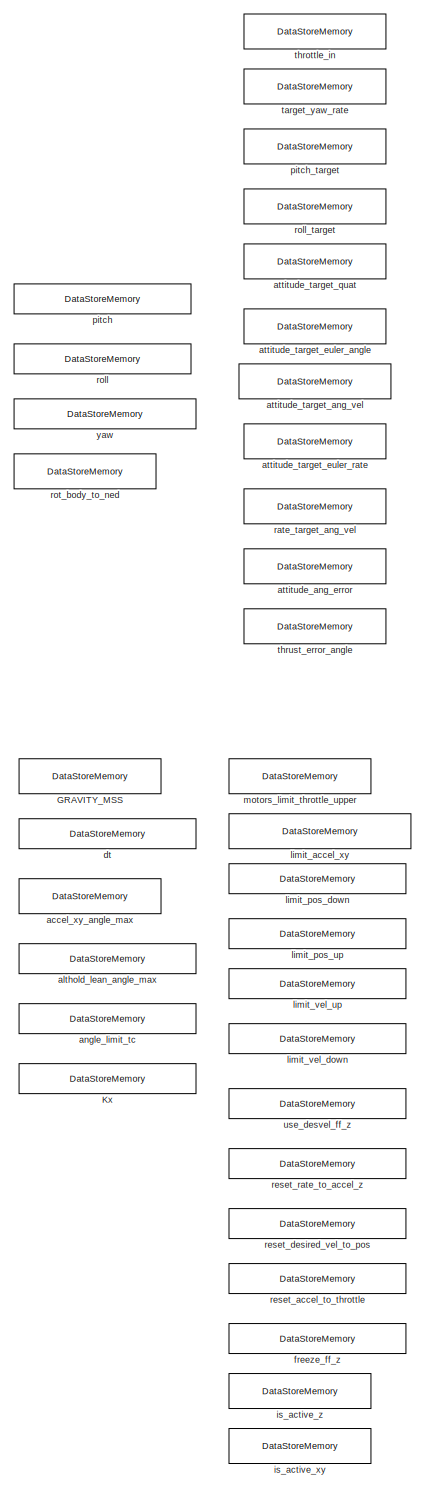
[diagram: root canvas - part 1/13, top center region]
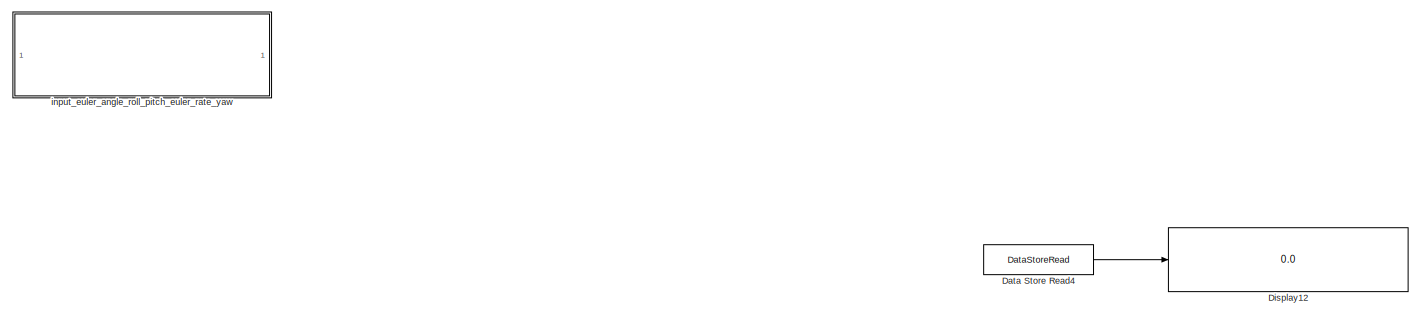
[diagram: root canvas - part 2/13, top left region]
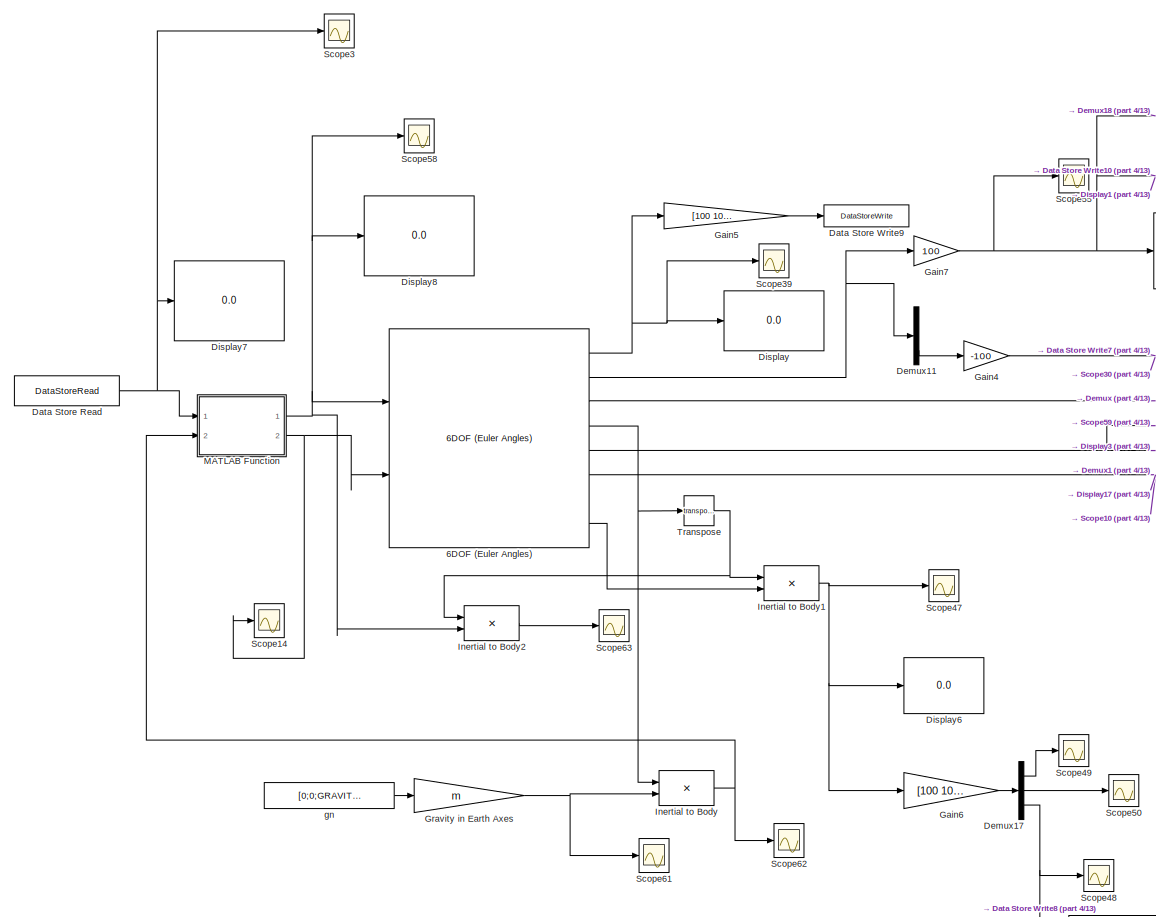
[diagram: root canvas - part 3/13, middle left region]
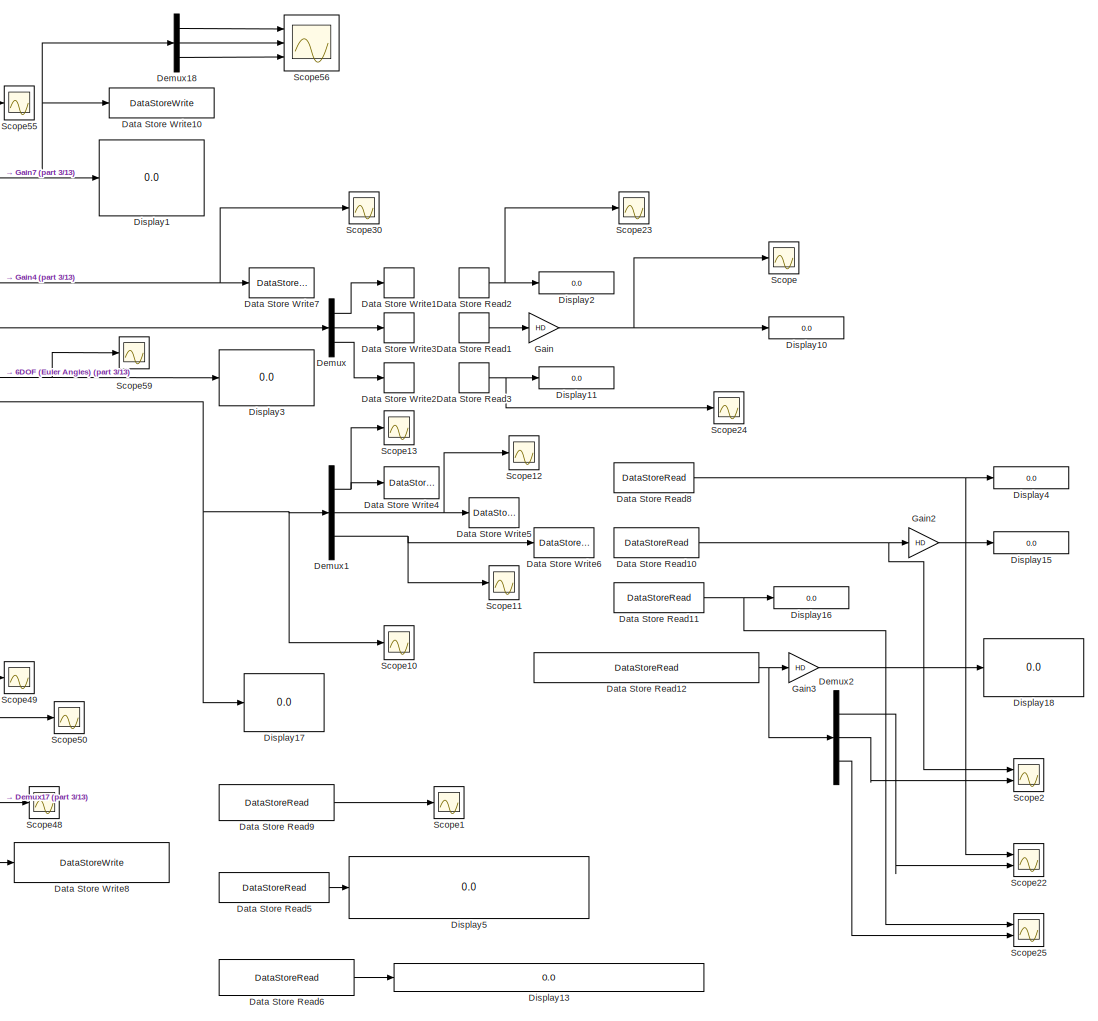
[diagram: root canvas - part 4/13, middle left region]
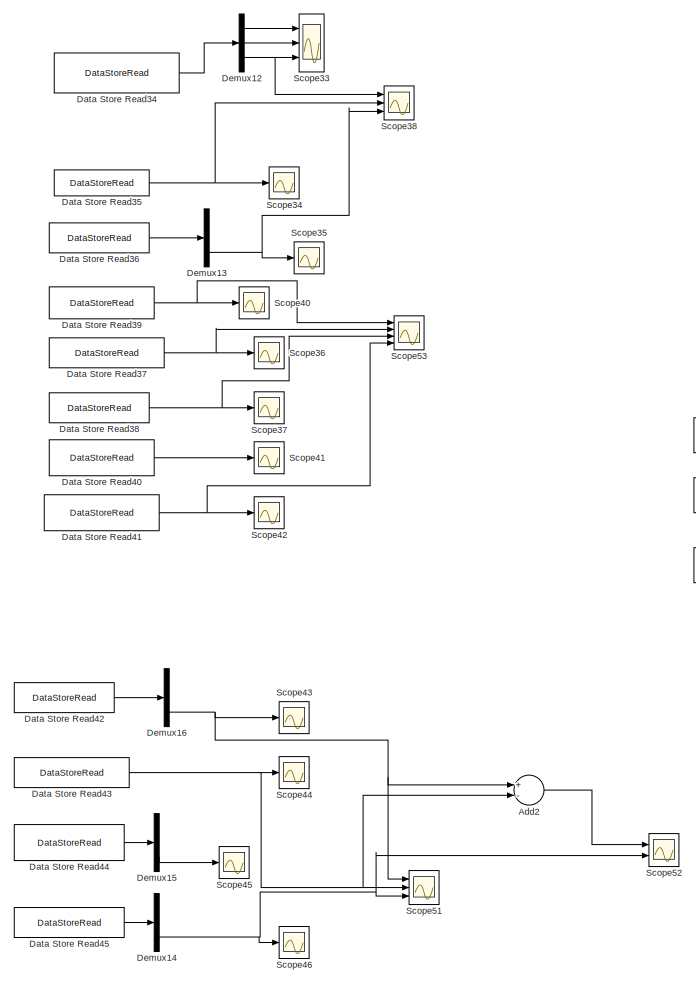
[diagram: root canvas - part 5/13, central region]
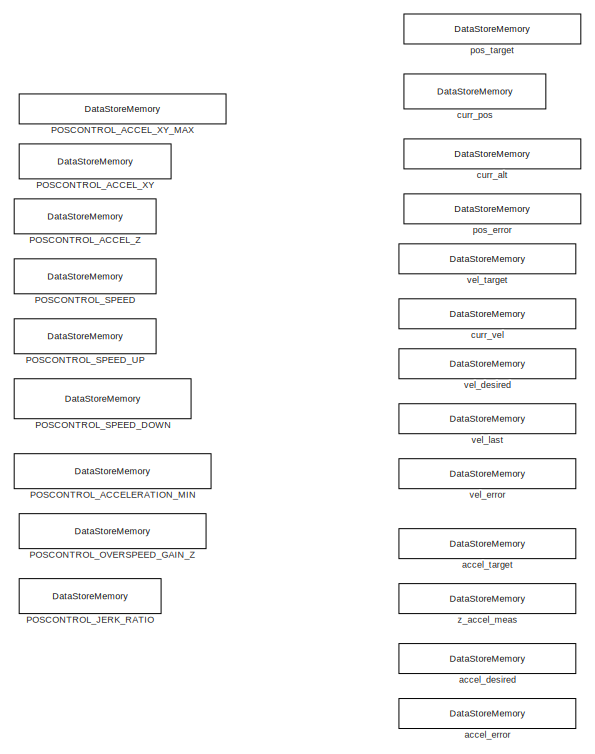
[diagram: root canvas - part 6/13, central region]
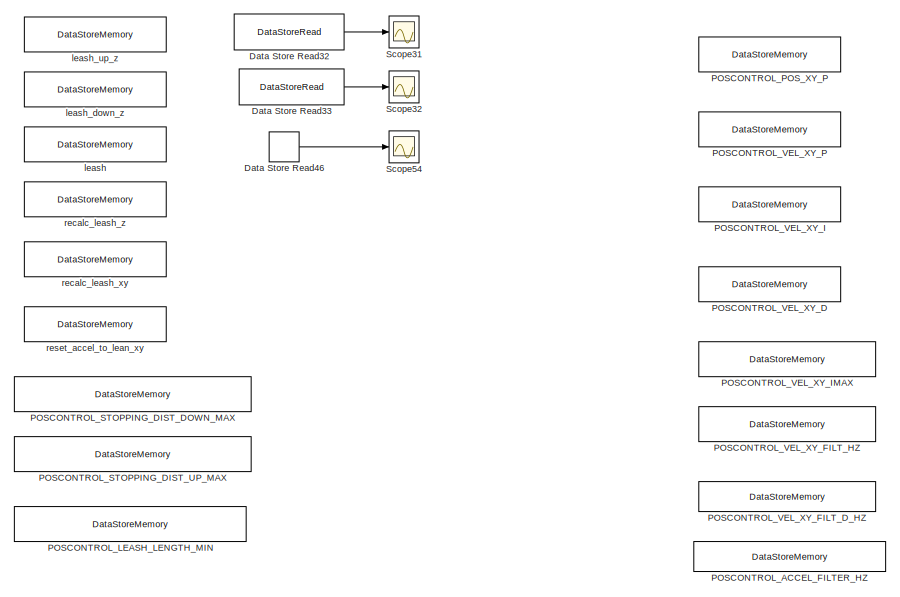
[diagram: root canvas - part 7/13, central region]
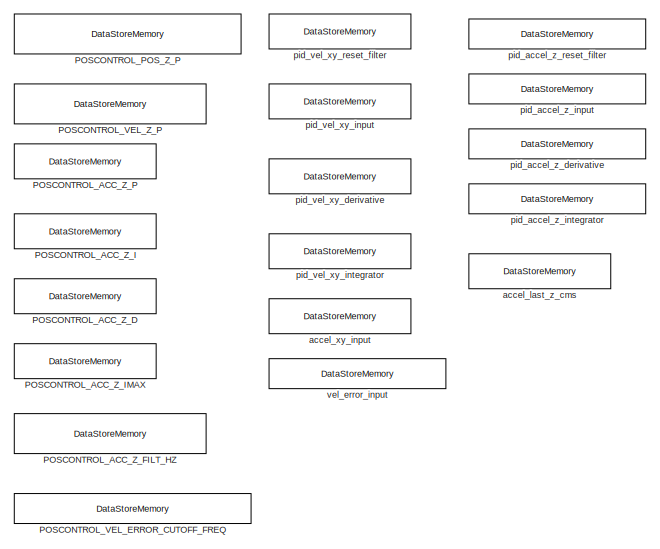
[diagram: root canvas - part 8/13, middle right region]
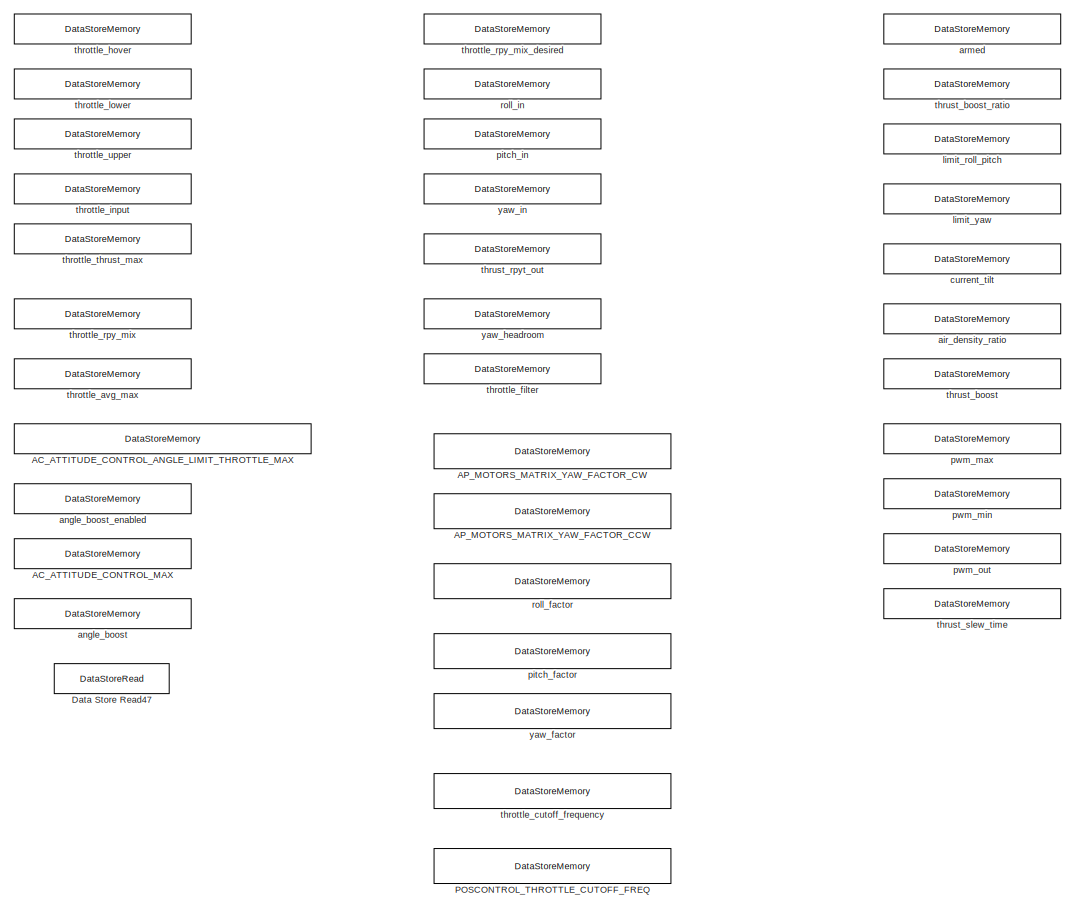
[diagram: root canvas - part 9/13, middle right region]
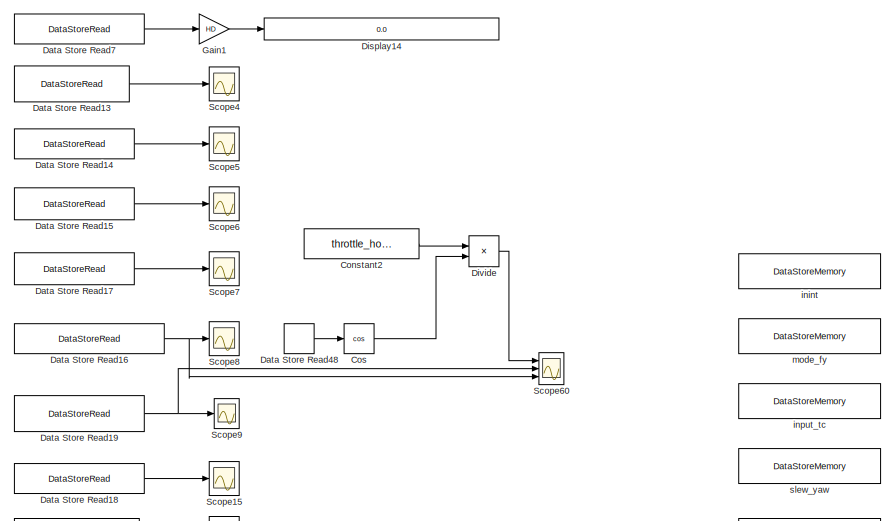
[diagram: root canvas - part 10/13, middle left region]
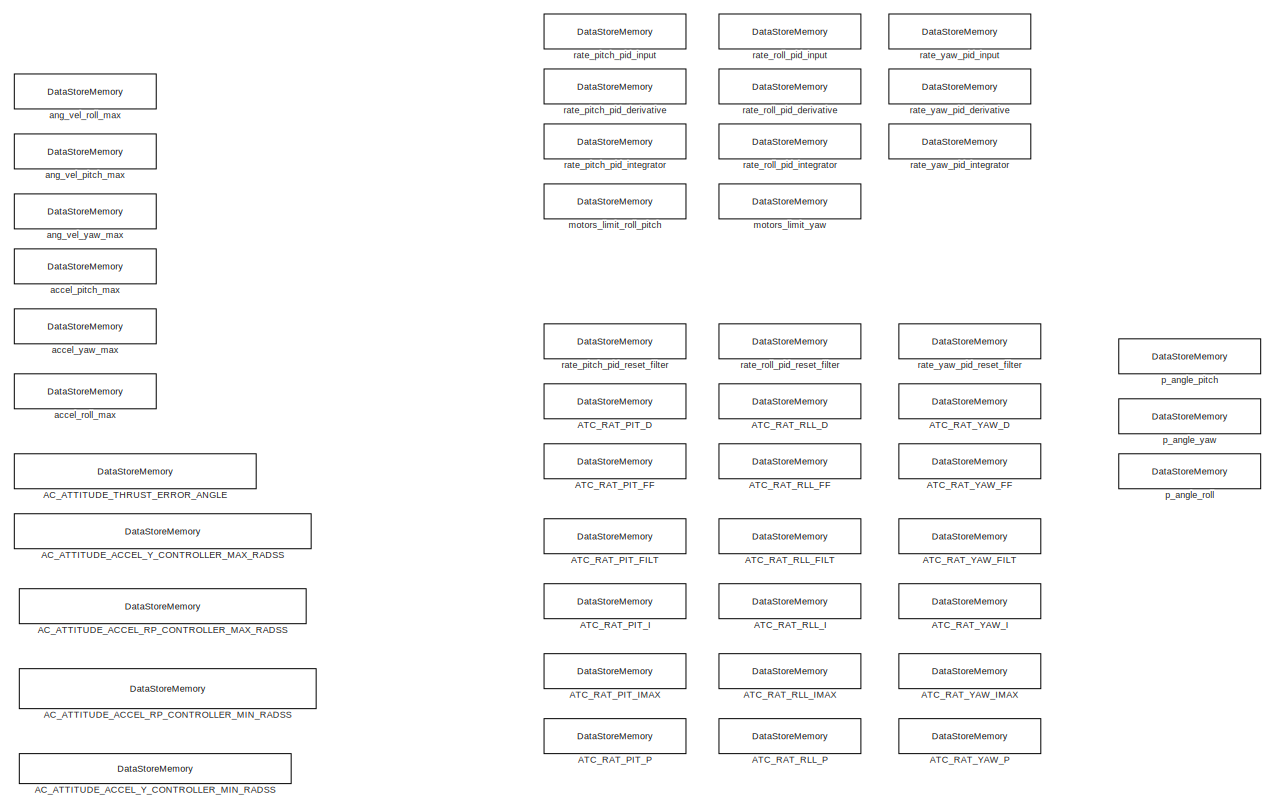
[diagram: root canvas - part 11/13, bottom center region]
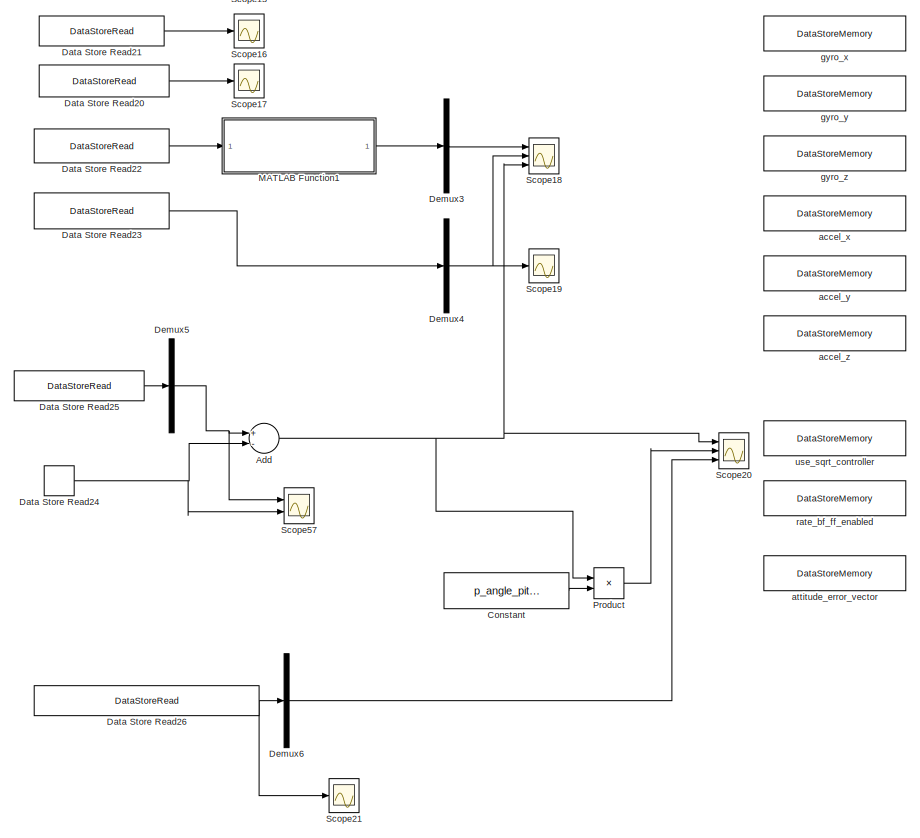
[diagram: root canvas - part 12/13, bottom left region]
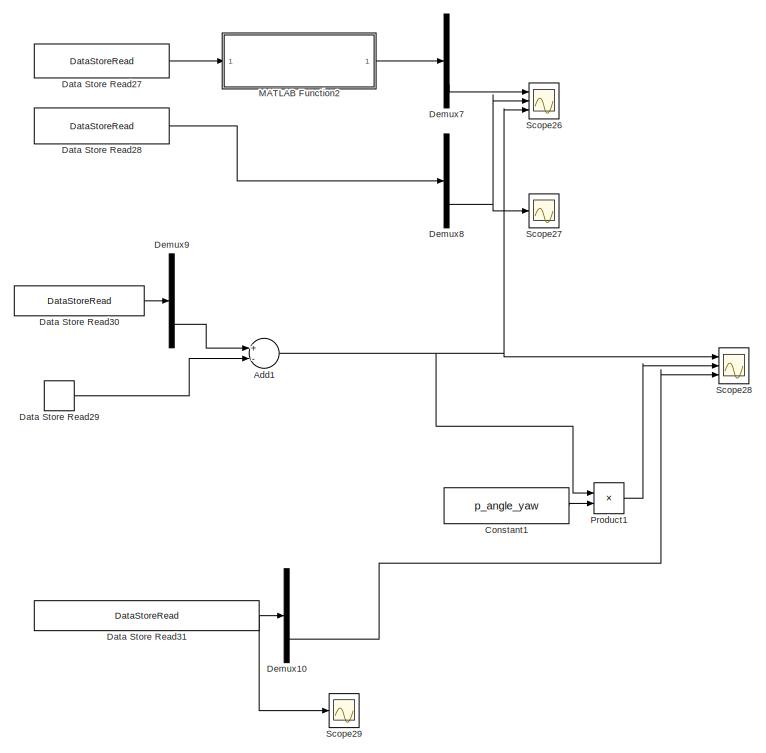
[diagram: root canvas - part 13/13, bottom left region]
MODEL slx_5e8bce1d998e
KIND model
CONFIG AbsTol = auto
CONFIG EnableMultiTasking = off
CONFIG FixedStep = dt
CONFIG MaxStep = auto
CONFIG MinStep = auto
CONFIG RelTol = 1e-3
CONFIG SampleTimeConstraint = Unconstrained
CONFIG Solver = ode1
CONFIG SolverName = ode1
CONFIG StartTime = 0.0
CONFIG StopTime = 20
BLOCK [Reference] 6DOF (Euler Angles)  REF=shared6dof/6DOF (Euler Angles)
  Ports = [2, 8]
  SourceBlock = shared6dof/6DOF (Euler Angles)
  SourceProductBaseCode = AE
  SourceProductName = Aerospace Blockset
  SourceType = 6DOF EoM (Body Axis)
BLOCK [DataStoreMemory] AC_ATTITUDE_ACCEL_RP_CONTROLLER_MAX_RADSS
  DataStoreName = AC_ATTITUDE_ACCEL_RP_CONTROLLER_MAX_RADSS
  InitialValue = AC_ATTITUDE_ACCEL_RP_CONTROLLER_MAX_RADSS
  OutDataTypeStr = double
  ReadBeforeWriteMsg = warning
  ShowAdditionalParam = off
  SignalType = real
  VectorParams1D = off
  WriteAfterReadMsg = warning
  WriteAfterWriteMsg = warning
BLOCK [DataStoreMemory] AC_ATTITUDE_ACCEL_RP_CONTROLLER_MIN_RADSS
  DataStoreName = AC_ATTITUDE_ACCEL_RP_CONTROLLER_MIN_RADSS
  InitialValue = AC_ATTITUDE_ACCEL_RP_CONTROLLER_MIN_RADSS
  OutDataTypeStr = double
  ReadBeforeWriteMsg = warning
  ShowAdditionalParam = off
  SignalType = real
  VectorParams1D = off
  WriteAfterReadMsg = warning
  WriteAfterWriteMsg = warning
BLOCK [DataStoreMemory] AC_ATTITUDE_ACCEL_Y_CONTROLLER_MAX_RADSS
  DataStoreName = AC_ATTITUDE_ACCEL_Y_CONTROLLER_MAX_RADSS
  InitialValue = AC_ATTITUDE_ACCEL_Y_CONTROLLER_MAX_RADSS
  OutDataTypeStr = double
  ReadBeforeWriteMsg = warning
  ShowAdditionalParam = off
  SignalType = real
  WriteAfterReadMsg = warning
  WriteAfterWriteMsg = warning
BLOCK [DataStoreMemory] AC_ATTITUDE_ACCEL_Y_CONTROLLER_MIN_RADSS
  DataStoreName = AC_ATTITUDE_ACCEL_Y_CONTROLLER_MIN_RADSS
  InitialValue = AC_ATTITUDE_ACCEL_Y_CONTROLLER_MIN_RADSS
  OutDataTypeStr = double
  ReadBeforeWriteMsg = warning
  ShowAdditionalParam = off
  SignalType = real
  VectorParams1D = off
  WriteAfterReadMsg = warning
  WriteAfterWriteMsg = warning
BLOCK [DataStoreMemory] AC_ATTITUDE_CONTROL_ANGLE_LIMIT_THROTTLE_MAX
  DataStoreName = AC_ATTITUDE_CONTROL_ANGLE_LIMIT_THROTTLE_MAX
  InitialValue = AC_ATTITUDE_CONTROL_ANGLE_LIMIT_THROTTLE_MAX
  OutDataTypeStr = double
  ReadBeforeWriteMsg = warning
  ShowAdditionalParam = off
  SignalType = real
  VectorParams1D = off
  WriteAfterReadMsg = warning
  WriteAfterWriteMsg = warning
BLOCK [DataStoreMemory] AC_ATTITUDE_CONTROL_MAX
  DataStoreName = AC_ATTITUDE_CONTROL_MAX
  InitialValue = AC_ATTITUDE_CONTROL_MAX
  OutDataTypeStr = double
  ReadBeforeWriteMsg = warning
  ShowAdditionalParam = off
  SignalType = real
  VectorParams1D = off
  WriteAfterReadMsg = warning
  WriteAfterWriteMsg = warning
BLOCK [DataStoreMemory] AC_ATTITUDE_THRUST_ERROR_ANGLE
  DataStoreName = AC_ATTITUDE_THRUST_ERROR_ANGLE
  InitialValue = AC_ATTITUDE_THRUST_ERROR_ANGLE
  OutDataTypeStr = double
  ReadBeforeWriteMsg = warning
  ShowAdditionalParam = off
  SignalType = real
  WriteAfterReadMsg = warning
  WriteAfterWriteMsg = warning
BLOCK [DataStoreMemory] AP_MOTORS_MATRIX_YAW_FACTOR_CCW
  DataStoreName = AP_MOTORS_MATRIX_YAW_FACTOR_CCW
  InitialValue = AP_MOTORS_MATRIX_YAW_FACTOR_CCW
  OutDataTypeStr = double
  ReadBeforeWriteMsg = warning
  ShowAdditionalParam = off
  SignalType = real
  VectorParams1D = off
  WriteAfterReadMsg = warning
  WriteAfterWriteMsg = warning
BLOCK [DataStoreMemory] AP_MOTORS_MATRIX_YAW_FACTOR_CW
  DataStoreName = AP_MOTORS_MATRIX_YAW_FACTOR_CW
  InitialValue = AP_MOTORS_MATRIX_YAW_FACTOR_CW
  OutDataTypeStr = double
  ReadBeforeWriteMsg = warning
  ShowAdditionalParam = off
  SignalType = real
  VectorParams1D = off
  WriteAfterReadMsg = warning
  WriteAfterWriteMsg = warning
BLOCK [DataStoreMemory] ATC_RAT_PIT_D
  DataStoreName = ATC_RAT_PIT_D
  InitialValue = ATC_RAT_PIT_D
  OutDataTypeStr = double
  ReadBeforeWriteMsg = warning
  ShowAdditionalParam = off
  SignalType = real
  VectorParams1D = off
  WriteAfterReadMsg = warning
  WriteAfterWriteMsg = warning
BLOCK [DataStoreMemory] ATC_RAT_PIT_FF
  DataStoreName = ATC_RAT_PIT_FF
  InitialValue = ATC_RAT_PIT_FF
  OutDataTypeStr = double
  ReadBeforeWriteMsg = warning
  ShowAdditionalParam = off
  SignalType = real
  VectorParams1D = off
  WriteAfterReadMsg = warning
  WriteAfterWriteMsg = warning
BLOCK [DataStoreMemory] ATC_RAT_PIT_FILT
  DataStoreName = ATC_RAT_PIT_FILT
  InitialValue = ATC_RAT_PIT_FILT
  OutDataTypeStr = double
  ReadBeforeWriteMsg = warning
  ShowAdditionalParam = off
  SignalType = real
  VectorParams1D = off
  WriteAfterReadMsg = warning
  WriteAfterWriteMsg = warning
BLOCK [DataStoreMemory] ATC_RAT_PIT_I
  DataStoreName = ATC_RAT_PIT_I
  InitialValue = ATC_RAT_PIT_I
  OutDataTypeStr = double
  ReadBeforeWriteMsg = warning
  ShowAdditionalParam = off
  SignalType = real
  VectorParams1D = off
  WriteAfterReadMsg = warning
  WriteAfterWriteMsg = warning
BLOCK [DataStoreMemory] ATC_RAT_PIT_IMAX
  DataStoreName = ATC_RAT_PIT_IMAX
  InitialValue = ATC_RAT_PIT_IMAX
  OutDataTypeStr = double
  ReadBeforeWriteMsg = warning
  ShowAdditionalParam = off
  SignalType = real
  VectorParams1D = off
  WriteAfterReadMsg = warning
  WriteAfterWriteMsg = warning
BLOCK [DataStoreMemory] ATC_RAT_PIT_P
  DataStoreName = ATC_RAT_PIT_P
  InitialValue = ATC_RAT_PIT_P
  OutDataTypeStr = double
  ReadBeforeWriteMsg = warning
  ShowAdditionalParam = off
  SignalType = real
  VectorParams1D = off
  WriteAfterReadMsg = warning
  WriteAfterWriteMsg = warning
BLOCK [DataStoreMemory] ATC_RAT_RLL_D
  DataStoreName = ATC_RAT_RLL_D
  InitialValue = ATC_RAT_RLL_D
  OutDataTypeStr = double
  ReadBeforeWriteMsg = warning
  ShowAdditionalParam = off
  SignalType = real
  VectorParams1D = off
  WriteAfterReadMsg = warning
  WriteAfterWriteMsg = warning
BLOCK [DataStoreMemory] ATC_RAT_RLL_FF
  DataStoreName = ATC_RAT_RLL_FF
  InitialValue = ATC_RAT_RLL_FF
  OutDataTypeStr = double
  ReadBeforeWriteMsg = warning
  ShowAdditionalParam = off
  SignalType = real
  VectorParams1D = off
  WriteAfterReadMsg = warning
  WriteAfterWriteMsg = warning
BLOCK [DataStoreMemory] ATC_RAT_RLL_FILT
  DataStoreName = ATC_RAT_RLL_FILT
  InitialValue = ATC_RAT_RLL_FILT
  OutDataTypeStr = double
  ReadBeforeWriteMsg = warning
  ShowAdditionalParam = off
  SignalType = real
  VectorParams1D = off
  WriteAfterReadMsg = warning
  WriteAfterWriteMsg = warning
BLOCK [DataStoreMemory] ATC_RAT_RLL_I
  DataStoreName = ATC_RAT_RLL_I
  InitialValue = ATC_RAT_RLL_I
  OutDataTypeStr = double
  ReadBeforeWriteMsg = warning
  ShowAdditionalParam = off
  SignalType = real
  VectorParams1D = off
  WriteAfterReadMsg = warning
  WriteAfterWriteMsg = warning
BLOCK [DataStoreMemory] ATC_RAT_RLL_IMAX
  DataStoreName = ATC_RAT_RLL_IMAX
  InitialValue = ATC_RAT_RLL_IMAX
  OutDataTypeStr = double
  ReadBeforeWriteMsg = warning
  ShowAdditionalParam = off
  SignalType = real
  VectorParams1D = off
  WriteAfterReadMsg = warning
  WriteAfterWriteMsg = warning
BLOCK [DataStoreMemory] ATC_RAT_RLL_P
  DataStoreName = ATC_RAT_RLL_P
  InitialValue = ATC_RAT_RLL_P
  OutDataTypeStr = double
  ReadBeforeWriteMsg = warning
  ShowAdditionalParam = off
  SignalType = real
  VectorParams1D = off
  WriteAfterReadMsg = warning
  WriteAfterWriteMsg = warning
BLOCK [DataStoreMemory] ATC_RAT_YAW_D
  DataStoreName = ATC_RAT_YAW_D
  InitialValue = ATC_RAT_YAW_D
  OutDataTypeStr = double
  ReadBeforeWriteMsg = warning
  ShowAdditionalParam = off
  SignalType = real
  VectorParams1D = off
  WriteAfterReadMsg = warning
  WriteAfterWriteMsg = warning
BLOCK [DataStoreMemory] ATC_RAT_YAW_FF
  DataStoreName = ATC_RAT_YAW_FF
  InitialValue = ATC_RAT_YAW_FF
  OutDataTypeStr = double
  ReadBeforeWriteMsg = warning
  ShowAdditionalParam = off
  SignalType = real
  VectorParams1D = off
  WriteAfterReadMsg = warning
  WriteAfterWriteMsg = warning
BLOCK [DataStoreMemory] ATC_RAT_YAW_FILT
  DataStoreName = ATC_RAT_YAW_FILT
  InitialValue = ATC_RAT_YAW_FILT
  OutDataTypeStr = double
  ReadBeforeWriteMsg = warning
  ShowAdditionalParam = off
  SignalType = real
  VectorParams1D = off
  WriteAfterReadMsg = warning
  WriteAfterWriteMsg = warning
BLOCK [DataStoreMemory] ATC_RAT_YAW_I
  DataStoreName = ATC_RAT_YAW_I
  InitialValue = ATC_RAT_YAW_I
  OutDataTypeStr = double
  ReadBeforeWriteMsg = warning
  ShowAdditionalParam = off
  SignalType = real
  VectorParams1D = off
  WriteAfterReadMsg = warning
  WriteAfterWriteMsg = warning
BLOCK [DataStoreMemory] ATC_RAT_YAW_IMAX
  DataStoreName = ATC_RAT_YAW_IMAX
  InitialValue = ATC_RAT_YAW_IMAX
  OutDataTypeStr = double
  ReadBeforeWriteMsg = warning
  ShowAdditionalParam = off
  SignalType = real
  VectorParams1D = off
  WriteAfterReadMsg = warning
  WriteAfterWriteMsg = warning
BLOCK [DataStoreMemory] ATC_RAT_YAW_P
  DataStoreName = ATC_RAT_YAW_P
  InitialValue = ATC_RAT_YAW_P
  OutDataTypeStr = double
  ReadBeforeWriteMsg = warning
  ShowAdditionalParam = off
  SignalType = real
  VectorParams1D = off
  WriteAfterReadMsg = warning
  WriteAfterWriteMsg = warning
BLOCK [Sum] Add
  InputSameDT = off
  Inputs = +-
  OutDataTypeStr = Inherit: Inherit via internal rule
  Ports = [2, 1]
  SaturateOnIntegerOverflow = off
BLOCK [Sum] Add1
  InputSameDT = off
  Inputs = +-
  OutDataTypeStr = Inherit: Inherit via internal rule
  Ports = [2, 1]
  SaturateOnIntegerOverflow = off
BLOCK [Sum] Add2
  InputSameDT = off
  Inputs = +-
  OutDataTypeStr = Inherit: Inherit via internal rule
  Ports = [2, 1]
  SaturateOnIntegerOverflow = off
BLOCK [Constant] Constant
  Value = p_angle_pitch
BLOCK [Constant] Constant1
  Value = p_angle_yaw
BLOCK [Constant] Constant2
  Value = throttle_hover
BLOCK [Trigonometry] Cos
  Operator = cos
  Ports = [1, 1]
BLOCK [DataStoreRead] Data Store Read
  DataStoreName = pwm_out
  Ports = [0, 1]
BLOCK [DataStoreRead] Data Store Read1
  DataStoreName = pitch
  Ports = [0, 1]
BLOCK [DataStoreRead] Data Store Read10
  DataStoreName = gyro_y
  Ports = [0, 1]
BLOCK [DataStoreRead] Data Store Read11
  DataStoreName = gyro_z
  Ports = [0, 1]
BLOCK [DataStoreRead] Data Store Read12
  DataStoreName = rate_target_ang_vel
  Ports = [0, 1]
BLOCK [DataStoreRead] Data Store Read13
  DataStoreName = pitch_in
  Ports = [0, 1]
BLOCK [DataStoreRead] Data Store Read14
  DataStoreName = roll_in
  Ports = [0, 1]
BLOCK [DataStoreRead] Data Store Read15
  DataStoreName = yaw_in
  Ports = [0, 1]
BLOCK [DataStoreRead] Data Store Read16
  DataStoreName = throttle_filter
  Ports = [0, 1]
BLOCK [DataStoreRead] Data Store Read17
  DataStoreName = thrust_rpyt_out
  Ports = [0, 1]
BLOCK [DataStoreRead] Data Store Read18
  DataStoreName = attitude_target_euler_angle
  Ports = [0, 1]
BLOCK [DataStoreRead] Data Store Read19
  DataStoreName = throttle_in
  Ports = [0, 1]
BLOCK [DataStoreRead] Data Store Read2
  DataStoreName = roll
  Ports = [0, 1]
BLOCK [DataStoreRead] Data Store Read20
  DataStoreName = attitude_target_euler_rate
  Ports = [0, 1]
BLOCK [DataStoreRead] Data Store Read21
  DataStoreName = attitude_target_ang_vel
  Ports = [0, 1]
BLOCK [DataStoreRead] Data Store Read22
  DataStoreName = attitude_ang_error
  Ports = [0, 1]
BLOCK [DataStoreRead] Data Store Read23
  DataStoreName = attitude_error_vector
  Ports = [0, 1]
BLOCK [DataStoreRead] Data Store Read24
  DataStoreName = pitch
  Ports = [0, 1]
BLOCK [DataStoreRead] Data Store Read25
  DataStoreName = attitude_target_euler_angle
  Ports = [0, 1]
BLOCK [DataStoreRead] Data Store Read26
  DataStoreName = rate_target_ang_vel
  Ports = [0, 1]
BLOCK [DataStoreRead] Data Store Read27
  DataStoreName = attitude_ang_error
  Ports = [0, 1]
BLOCK [DataStoreRead] Data Store Read28
  DataStoreName = attitude_error_vector
  Ports = [0, 1]
BLOCK [DataStoreRead] Data Store Read29
  DataStoreName = yaw
  Ports = [0, 1]
BLOCK [DataStoreRead] Data Store Read3
  DataStoreName = yaw
  Ports = [0, 1]
BLOCK [DataStoreRead] Data Store Read30
  DataStoreName = attitude_target_euler_angle
  Ports = [0, 1]
BLOCK [DataStoreRead] Data Store Read31
  DataStoreName = rate_target_ang_vel
  Ports = [0, 1]
BLOCK [DataStoreRead] Data Store Read32
  DataStoreName = leash_up_z
  Ports = [0, 1]
BLOCK [DataStoreRead] Data Store Read33
  DataStoreName = leash_down_z
  Ports = [0, 1]
BLOCK [DataStoreRead] Data Store Read34
  DataStoreName = pos_target
  Ports = [0, 1]
BLOCK [DataStoreRead] Data Store Read35
  DataStoreName = curr_alt
  Ports = [0, 1]
BLOCK [DataStoreRead] Data Store Read36
  DataStoreName = pos_error
  Ports = [0, 1]
BLOCK [DataStoreRead] Data Store Read37
  DataStoreName = vel_target
  Ports = [0, 1]
BLOCK [DataStoreRead] Data Store Read38
  DataStoreName = curr_vel
  Ports = [0, 1]
BLOCK [DataStoreRead] Data Store Read39
  DataStoreName = vel_desired
  Ports = [0, 1]
BLOCK [DataStoreRead] Data Store Read4
  DataStoreName = rot_body_to_ned
  Ports = [0, 1]
BLOCK [DataStoreRead] Data Store Read40
  DataStoreName = vel_last
  Ports = [0, 1]
BLOCK [DataStoreRead] Data Store Read41
  DataStoreName = vel_error
  Ports = [0, 1]
BLOCK [DataStoreRead] Data Store Read42
  DataStoreName = accel_target
  Ports = [0, 1]
BLOCK [DataStoreRead] Data Store Read43
  DataStoreName = z_accel_meas
  Ports = [0, 1]
BLOCK [DataStoreRead] Data Store Read44
  DataStoreName = accel_desired
  Ports = [0, 1]
BLOCK [DataStoreRead] Data Store Read45
  DataStoreName = accel_error
  Ports = [0, 1]
BLOCK [DataStoreRead] Data Store Read46
  DataStoreName = leash
  Ports = [0, 1]
BLOCK [DataStoreRead] Data Store Read47
  DataStoreName = angle_boost
  Ports = [0, 1]
BLOCK [DataStoreRead] Data Store Read48
  DataStoreName = pitch
  Ports = [0, 1]
BLOCK [DataStoreRead] Data Store Read5
  DataStoreName = rot_body_to_ned
  Ports = [0, 1]
BLOCK [DataStoreRead] Data Store Read6
  DataStoreName = attitude_target_quat
  Ports = [0, 1]
BLOCK [DataStoreRead] Data Store Read7
  DataStoreName = attitude_target_euler_angle
  Ports = [0, 1]
BLOCK [DataStoreRead] Data Store Read8
  DataStoreName = gyro_x
  Ports = [0, 1]
BLOCK [DataStoreRead] Data Store Read9
  DataStoreName = rate_target_ang_vel
  Ports = [0, 1]
BLOCK [DataStoreWrite] Data Store Write1
  DataStoreName = roll
  Ports = [1]
BLOCK [DataStoreWrite] Data Store Write10
  DataStoreName = curr_pos
  Ports = [1]
BLOCK [DataStoreWrite] Data Store Write2
  DataStoreName = yaw
  Ports = [1]
BLOCK [DataStoreWrite] Data Store Write3
  DataStoreName = pitch
  Ports = [1]
BLOCK [DataStoreWrite] Data Store Write4
  DataStoreName = gyro_x
  Ports = [1]
BLOCK [DataStoreWrite] Data Store Write5
  DataStoreName = gyro_y
  Ports = [1]
BLOCK [DataStoreWrite] Data Store Write6
  DataStoreName = gyro_z
  Ports = [1]
BLOCK [DataStoreWrite] Data Store Write7
  DataStoreName = curr_alt
  Ports = [1]
BLOCK [DataStoreWrite] Data Store Write8
  DataStoreName = z_accel_meas
  Ports = [1]
BLOCK [DataStoreWrite] Data Store Write9
  DataStoreName = curr_vel
  Ports = [1]
BLOCK [Demux] Demux
  DisplayOption = bar
  Outputs = 3
  Ports = [1, 3]
BLOCK [Demux] Demux1
  DisplayOption = bar
  Outputs = 3
  Ports = [1, 3]
BLOCK [Demux] Demux10
  DisplayOption = bar
  Outputs = 3
  Ports = [1, 3]
BLOCK [Demux] Demux11
  DisplayOption = bar
  Outputs = 3
  Ports = [1, 3]
BLOCK [Demux] Demux12
  DisplayOption = bar
  Outputs = 3
  Ports = [1, 3]
BLOCK [Demux] Demux13
  DisplayOption = bar
  Outputs = 3
  Ports = [1, 3]
BLOCK [Demux] Demux14
  DisplayOption = bar
  Outputs = 3
  Ports = [1, 3]
BLOCK [Demux] Demux15
  DisplayOption = bar
  Outputs = 3
  Ports = [1, 3]
BLOCK [Demux] Demux16
  DisplayOption = bar
  Outputs = 3
  Ports = [1, 3]
BLOCK [Demux] Demux17
  DisplayOption = bar
  Outputs = 3
  Ports = [1, 3]
BLOCK [Demux] Demux18
  DisplayOption = bar
  Outputs = 3
  Ports = [1, 3]
BLOCK [Demux] Demux2
  DisplayOption = bar
  Outputs = 3
  Ports = [1, 3]
BLOCK [Demux] Demux3
  DisplayOption = bar
  Outputs = 3
  Ports = [1, 3]
BLOCK [Demux] Demux4
  DisplayOption = bar
  Outputs = 3
  Ports = [1, 3]
BLOCK [Demux] Demux5
  DisplayOption = bar
  Outputs = 3
  Ports = [1, 3]
BLOCK [Demux] Demux6
  DisplayOption = bar
  Outputs = 3
  Ports = [1, 3]
BLOCK [Demux] Demux7
  DisplayOption = bar
  Outputs = 3
  Ports = [1, 3]
BLOCK [Demux] Demux8
  DisplayOption = bar
  Outputs = 3
  Ports = [1, 3]
BLOCK [Demux] Demux9
  DisplayOption = bar
  Outputs = 3
  Ports = [1, 3]
BLOCK [Display] Display
  Decimation = 1
  Ports = [1]
BLOCK [Display] Display1
  Decimation = 1
  Ports = [1]
BLOCK [Display] Display10
  Decimation = 1
  Ports = [1]
BLOCK [Display] Display11
  Decimation = 1
  Ports = [1]
BLOCK [Display] Display12
  Decimation = 1
  Ports = [1]
BLOCK [Display] Display13
  Decimation = 1
  Ports = [1]
BLOCK [Display] Display14
  Decimation = 1
  Ports = [1]
BLOCK [Display] Display15
  Decimation = 1
  Ports = [1]
BLOCK [Display] Display16
  Decimation = 1
  Ports = [1]
BLOCK [Display] Display17
  Decimation = 1
  Ports = [1]
BLOCK [Display] Display18
  Decimation = 1
  Ports = [1]
BLOCK [Display] Display2
  Decimation = 1
  Ports = [1]
BLOCK [Display] Display3
  Decimation = 1
  Ports = [1]
BLOCK [Display] Display4
  Decimation = 1
  Ports = [1]
BLOCK [Display] Display5
  Decimation = 1
  Ports = [1]
BLOCK [Display] Display6
  Decimation = 1
  Ports = [1]
BLOCK [Display] Display7
  Decimation = 1
  Format = bank
  Ports = [1]
BLOCK [Display] Display8
  Decimation = 1
  Ports = [1]
BLOCK [Product] Divide
  InputSameDT = off
  Inputs = */
  OutDataTypeStr = Inherit: Inherit via internal rule
  Ports = [2, 1]
  RndMeth = Floor
  SaturateOnIntegerOverflow = off
BLOCK [DataStoreMemory] GRAVITY_MSS
  DataStoreName = GRAVITY_MSS
  InitialValue = GRAVITY_MSS
  OutDataTypeStr = double
  ReadBeforeWriteMsg = warning
  ShowAdditionalParam = off
  SignalType = real
  VectorParams1D = off
  WriteAfterReadMsg = warning
  WriteAfterWriteMsg = warning
BLOCK [Gain] Gain
  Gain = HD
  OutDataTypeStr = Inherit: Inherit via internal rule
  ParamDataTypeStr = Inherit: Inherit via internal rule
  SaturateOnIntegerOverflow = off
BLOCK [Gain] Gain1
  Gain = HD
  OutDataTypeStr = Inherit: Inherit via internal rule
  ParamDataTypeStr = Inherit: Inherit via internal rule
  SaturateOnIntegerOverflow = off
BLOCK [Gain] Gain2
  Gain = HD
  OutDataTypeStr = Inherit: Inherit via internal rule
  ParamDataTypeStr = Inherit: Inherit via internal rule
  SaturateOnIntegerOverflow = off
BLOCK [Gain] Gain3
  Gain = HD
  OutDataTypeStr = Inherit: Inherit via internal rule
  ParamDataTypeStr = Inherit: Inherit via internal rule
  SaturateOnIntegerOverflow = off
BLOCK [Gain] Gain4
  Gain = -100
  OutDataTypeStr = Inherit: Inherit via internal rule
  ParamDataTypeStr = Inherit: Inherit via internal rule
  SaturateOnIntegerOverflow = off
BLOCK [Gain] Gain5
  Gain = [100 100 -100]
  OutDataTypeStr = Inherit: Inherit via internal rule
  ParamDataTypeStr = Inherit: Inherit via internal rule
  SaturateOnIntegerOverflow = off
BLOCK [Gain] Gain6
  Gain = [100 100 -100]
  OutDataTypeStr = Inherit: Inherit via internal rule
  ParamDataTypeStr = Inherit: Inherit via internal rule
  SaturateOnIntegerOverflow = off
BLOCK [Gain] Gain7
  Gain = 100
  OutDataTypeStr = Inherit: Inherit via internal rule
  ParamDataTypeStr = Inherit: Inherit via internal rule
  SaturateOnIntegerOverflow = off
BLOCK [Gain] Gravity in Earth Axes
  Gain = m
BLOCK [Product] Inertial to Body
  Multiplication = Matrix(*)
  Ports = [2, 1]
  RndMeth = Floor
BLOCK [Product] Inertial to Body1
  Multiplication = Matrix(*)
  Ports = [2, 1]
  RndMeth = Floor
BLOCK [Product] Inertial to Body2
  Multiplication = Matrix(*)
  Ports = [2, 1]
  RndMeth = Floor
BLOCK [DataStoreMemory] Kx
  DataStoreName = Kx
  InitialValue = Kx
  OutDataTypeStr = double
  ReadBeforeWriteMsg = warning
  ShowAdditionalParam = off
  SignalType = real
  VectorParams1D = off
  WriteAfterReadMsg = warning
  WriteAfterWriteMsg = warning
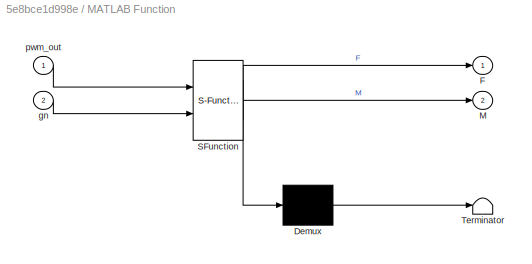
BLOCK [SubSystem] MATLAB Function
  ErrorFcn = Stateflow.Translate.translate
  PermitHierarchicalResolution = ExplicitOnly
  Ports = [2, 2]
  RequestExecContextInheritance = off
  SFBlockType = MATLAB Function
  TreatAsAtomicUnit = on
BLOCK [Demux] MATLAB Function/ Demux 
  Outputs = 1
  Ports = [1, 1]
BLOCK [S-Function] MATLAB Function/ SFunction 
  EnableBusSupport = on
  FunctionName = sf_sfun
  Parameters = Kd,Ku,Ld,Ldx,Ldy,Lu,Lux,Luy,Qd,Qu,pwm_max,pwm_min
  PortCounts = [2 3]
  Ports = [2, 3]
  SFcnIsStateOwnerBlock = off
  SFunctionDeploymentMode = off
  Tag = Stateflow S-Function sim_pos_att2 1
BLOCK [Terminator] MATLAB Function/ Terminator 
BLOCK [Outport] MATLAB Function/F
  IconDisplay = Port number
BLOCK [Outport] MATLAB Function/M
  IconDisplay = Port number
  Port = 2
BLOCK [Inport] MATLAB Function/gn
  IconDisplay = Port number
  Port = 2
BLOCK [Inport] MATLAB Function/pwm_out
  IconDisplay = Port number
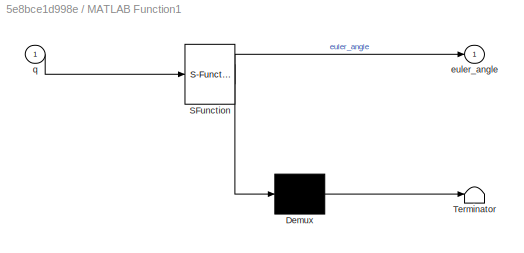
BLOCK [SubSystem] MATLAB Function1
  ErrorFcn = Stateflow.Translate.translate
  PermitHierarchicalResolution = ExplicitOnly
  Ports = [1, 1]
  RequestExecContextInheritance = off
  SFBlockType = MATLAB Function
  TreatAsAtomicUnit = on
BLOCK [Demux] MATLAB Function1/ Demux 
  Outputs = 1
  Ports = [1, 1]
BLOCK [S-Function] MATLAB Function1/ SFunction 
  EnableBusSupport = on
  FunctionName = sf_sfun
  PortCounts = [1 2]
  Ports = [1, 2]
  SFcnIsStateOwnerBlock = off
  SFunctionDeploymentMode = off
  Tag = Stateflow S-Function sim_pos_att2 3
BLOCK [Terminator] MATLAB Function1/ Terminator 
BLOCK [Outport] MATLAB Function1/euler_angle
  IconDisplay = Port number
BLOCK [Inport] MATLAB Function1/q
  IconDisplay = Port number
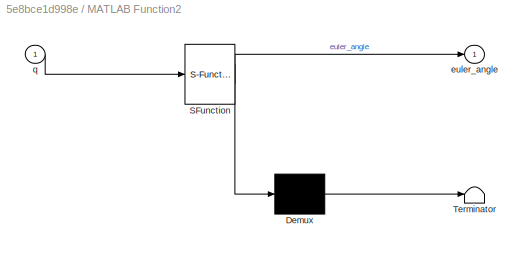
BLOCK [SubSystem] MATLAB Function2
  ErrorFcn = Stateflow.Translate.translate
  PermitHierarchicalResolution = ExplicitOnly
  Ports = [1, 1]
  RequestExecContextInheritance = off
  SFBlockType = MATLAB Function
  TreatAsAtomicUnit = on
BLOCK [Demux] MATLAB Function2/ Demux 
  Outputs = 1
  Ports = [1, 1]
BLOCK [S-Function] MATLAB Function2/ SFunction 
  EnableBusSupport = on
  FunctionName = sf_sfun
  PortCounts = [1 2]
  Ports = [1, 2]
  SFcnIsStateOwnerBlock = off
  SFunctionDeploymentMode = off
  Tag = Stateflow S-Function sim_pos_att2 4
BLOCK [Terminator] MATLAB Function2/ Terminator 
BLOCK [Outport] MATLAB Function2/euler_angle
  IconDisplay = Port number
BLOCK [Inport] MATLAB Function2/q
  IconDisplay = Port number
BLOCK [DataStoreMemory] POSCONTROL_ACCELERATION_MIN
  DataStoreName = POSCONTROL_ACCELERATION_MIN
  InitialValue = POSCONTROL_ACCELERATION_MIN
  OutDataTypeStr = double
  ReadBeforeWriteMsg = warning
  ShowAdditionalParam = off
  SignalType = real
  WriteAfterReadMsg = warning
  WriteAfterWriteMsg = warning
BLOCK [DataStoreMemory] POSCONTROL_ACCEL_FILTER_HZ
  DataStoreName = POSCONTROL_ACCEL_FILTER_HZ
  InitialValue = POSCONTROL_ACCEL_FILTER_HZ
  OutDataTypeStr = double
  ReadBeforeWriteMsg = warning
  ShowAdditionalParam = off
  SignalType = real
  VectorParams1D = off
  WriteAfterReadMsg = warning
  WriteAfterWriteMsg = warning
BLOCK [DataStoreMemory] POSCONTROL_ACCEL_XY
  DataStoreName = POSCONTROL_ACCEL_XY
  InitialValue = POSCONTROL_ACCEL_XY
  OutDataTypeStr = double
  ReadBeforeWriteMsg = warning
  ShowAdditionalParam = off
  SignalType = real
  VectorParams1D = off
  WriteAfterReadMsg = warning
  WriteAfterWriteMsg = warning
BLOCK [DataStoreMemory] POSCONTROL_ACCEL_XY_MAX
  DataStoreName = POSCONTROL_ACCEL_XY_MAX
  InitialValue = POSCONTROL_ACCEL_XY_MAX
  OutDataTypeStr = double
  ReadBeforeWriteMsg = warning
  ShowAdditionalParam = off
  SignalType = real
  VectorParams1D = off
  WriteAfterReadMsg = warning
  WriteAfterWriteMsg = warning
BLOCK [DataStoreMemory] POSCONTROL_ACCEL_Z
  DataStoreName = POSCONTROL_ACCEL_Z
  InitialValue = POSCONTROL_ACCEL_Z
  OutDataTypeStr = double
  ReadBeforeWriteMsg = warning
  ShowAdditionalParam = off
  SignalType = real
  WriteAfterReadMsg = warning
  WriteAfterWriteMsg = warning
BLOCK [DataStoreMemory] POSCONTROL_ACC_Z_D
  DataStoreName = POSCONTROL_ACC_Z_D
  InitialValue = POSCONTROL_ACC_Z_D
  OutDataTypeStr = double
  ReadBeforeWriteMsg = warning
  ShowAdditionalParam = off
  SignalType = real
  VectorParams1D = off
  WriteAfterReadMsg = warning
  WriteAfterWriteMsg = warning
BLOCK [DataStoreMemory] POSCONTROL_ACC_Z_FILT_HZ
  DataStoreName = POSCONTROL_ACC_Z_FILT_HZ
  InitialValue = POSCONTROL_ACC_Z_FILT_HZ
  OutDataTypeStr = double
  ReadBeforeWriteMsg = warning
  ShowAdditionalParam = off
  SignalType = real
  VectorParams1D = off
  WriteAfterReadMsg = warning
  WriteAfterWriteMsg = warning
BLOCK [DataStoreMemory] POSCONTROL_ACC_Z_I
  DataStoreName = POSCONTROL_ACC_Z_I
  InitialValue = POSCONTROL_ACC_Z_I
  OutDataTypeStr = double
  ReadBeforeWriteMsg = warning
  ShowAdditionalParam = off
  SignalType = real
  VectorParams1D = off
  WriteAfterReadMsg = warning
  WriteAfterWriteMsg = warning
BLOCK [DataStoreMemory] POSCONTROL_ACC_Z_IMAX
  DataStoreName = POSCONTROL_ACC_Z_IMAX
  InitialValue = POSCONTROL_ACC_Z_IMAX
  OutDataTypeStr = double
  ReadBeforeWriteMsg = warning
  ShowAdditionalParam = off
  SignalType = real
  VectorParams1D = off
  WriteAfterReadMsg = warning
  WriteAfterWriteMsg = warning
BLOCK [DataStoreMemory] POSCONTROL_ACC_Z_P
  DataStoreName = POSCONTROL_ACC_Z_P
  InitialValue = POSCONTROL_ACC_Z_P
  OutDataTypeStr = double
  ReadBeforeWriteMsg = warning
  ShowAdditionalParam = off
  SignalType = real
  VectorParams1D = off
  WriteAfterReadMsg = warning
  WriteAfterWriteMsg = warning
BLOCK [DataStoreMemory] POSCONTROL_JERK_RATIO
  DataStoreName = POSCONTROL_JERK_RATIO
  InitialValue = POSCONTROL_JERK_RATIO
  OutDataTypeStr = double
  ReadBeforeWriteMsg = warning
  ShowAdditionalParam = off
  SignalType = real
  VectorParams1D = off
  WriteAfterReadMsg = warning
  WriteAfterWriteMsg = warning
BLOCK [DataStoreMemory] POSCONTROL_LEASH_LENGTH_MIN
  DataStoreName = POSCONTROL_LEASH_LENGTH_MIN
  InitialValue = POSCONTROL_LEASH_LENGTH_MIN
  OutDataTypeStr = double
  ReadBeforeWriteMsg = warning
  ShowAdditionalParam = off
  SignalType = real
  VectorParams1D = off
  WriteAfterReadMsg = warning
  WriteAfterWriteMsg = warning
BLOCK [DataStoreMemory] POSCONTROL_OVERSPEED_GAIN_Z
  DataStoreName = POSCONTROL_OVERSPEED_GAIN_Z
  InitialValue = POSCONTROL_OVERSPEED_GAIN_Z
  OutDataTypeStr = double
  ReadBeforeWriteMsg = warning
  ShowAdditionalParam = off
  SignalType = real
  VectorParams1D = off
  WriteAfterReadMsg = warning
  WriteAfterWriteMsg = warning
BLOCK [DataStoreMemory] POSCONTROL_POS_XY_P
  DataStoreName = POSCONTROL_POS_XY_P
  InitialValue = POSCONTROL_POS_XY_P
  OutDataTypeStr = double
  ReadBeforeWriteMsg = warning
  ShowAdditionalParam = off
  SignalType = real
  VectorParams1D = off
  WriteAfterReadMsg = warning
  WriteAfterWriteMsg = warning
BLOCK [DataStoreMemory] POSCONTROL_POS_Z_P
  DataStoreName = POSCONTROL_POS_Z_P
  InitialValue = POSCONTROL_POS_Z_P
  OutDataTypeStr = double
  ReadBeforeWriteMsg = warning
  ShowAdditionalParam = off
  SignalType = real
  VectorParams1D = off
  WriteAfterReadMsg = warning
  WriteAfterWriteMsg = warning
BLOCK [DataStoreMemory] POSCONTROL_SPEED
  DataStoreName = POSCONTROL_SPEED
  InitialValue = POSCONTROL_SPEED
  OutDataTypeStr = double
  ReadBeforeWriteMsg = warning
  ShowAdditionalParam = off
  SignalType = real
  WriteAfterReadMsg = warning
  WriteAfterWriteMsg = warning
BLOCK [DataStoreMemory] POSCONTROL_SPEED_DOWN
  DataStoreName = POSCONTROL_SPEED_DOWN
  InitialValue = POSCONTROL_SPEED_DOWN
  OutDataTypeStr = double
  ReadBeforeWriteMsg = warning
  ShowAdditionalParam = off
  SignalType = real
  WriteAfterReadMsg = warning
  WriteAfterWriteMsg = warning
BLOCK [DataStoreMemory] POSCONTROL_SPEED_UP
  DataStoreName = POSCONTROL_SPEED_UP
  InitialValue = POSCONTROL_SPEED_UP
  OutDataTypeStr = double
  ReadBeforeWriteMsg = warning
  ShowAdditionalParam = off
  SignalType = real
  WriteAfterReadMsg = warning
  WriteAfterWriteMsg = warning
BLOCK [DataStoreMemory] POSCONTROL_STOPPING_DIST_DOWN_MAX
  DataStoreName = POSCONTROL_STOPPING_DIST_DOWN_MAX
  InitialValue = POSCONTROL_STOPPING_DIST_DOWN_MAX
  OutDataTypeStr = double
  ReadBeforeWriteMsg = warning
  ShowAdditionalParam = off
  SignalType = real
  VectorParams1D = off
  WriteAfterReadMsg = warning
  WriteAfterWriteMsg = warning
BLOCK [DataStoreMemory] POSCONTROL_STOPPING_DIST_UP_MAX
  DataStoreName = POSCONTROL_STOPPING_DIST_UP_MAX
  InitialValue = POSCONTROL_STOPPING_DIST_UP_MAX
  OutDataTypeStr = double
  ReadBeforeWriteMsg = warning
  ShowAdditionalParam = off
  SignalType = real
  VectorParams1D = off
  WriteAfterReadMsg = warning
  WriteAfterWriteMsg = warning
BLOCK [DataStoreMemory] POSCONTROL_THROTTLE_CUTOFF_FREQ
  DataStoreName = POSCONTROL_THROTTLE_CUTOFF_FREQ
  InitialValue = POSCONTROL_THROTTLE_CUTOFF_FREQ
  OutDataTypeStr = double
  ReadBeforeWriteMsg = warning
  ShowAdditionalParam = off
  SignalType = real
  VectorParams1D = off
  WriteAfterReadMsg = warning
  WriteAfterWriteMsg = warning
BLOCK [DataStoreMemory] POSCONTROL_VEL_ERROR_CUTOFF_FREQ
  DataStoreName = POSCONTROL_VEL_ERROR_CUTOFF_FREQ
  InitialValue = POSCONTROL_VEL_ERROR_CUTOFF_FREQ
  OutDataTypeStr = double
  ReadBeforeWriteMsg = warning
  ShowAdditionalParam = off
  SignalType = real
  VectorParams1D = off
  WriteAfterReadMsg = warning
  WriteAfterWriteMsg = warning
BLOCK [DataStoreMemory] POSCONTROL_VEL_XY_D
  DataStoreName = POSCONTROL_VEL_XY_D
  InitialValue = POSCONTROL_VEL_XY_D
  OutDataTypeStr = double
  ReadBeforeWriteMsg = warning
  ShowAdditionalParam = off
  SignalType = real
  VectorParams1D = off
  WriteAfterReadMsg = warning
  WriteAfterWriteMsg = warning
BLOCK [DataStoreMemory] POSCONTROL_VEL_XY_FILT_D_HZ
  DataStoreName = POSCONTROL_VEL_XY_FILT_D_HZ
  InitialValue = POSCONTROL_VEL_XY_FILT_D_HZ
  OutDataTypeStr = double
  ReadBeforeWriteMsg = warning
  ShowAdditionalParam = off
  SignalType = real
  VectorParams1D = off
  WriteAfterReadMsg = warning
  WriteAfterWriteMsg = warning
BLOCK [DataStoreMemory] POSCONTROL_VEL_XY_FILT_HZ
  DataStoreName = POSCONTROL_VEL_XY_FILT_HZ
  InitialValue = POSCONTROL_VEL_XY_FILT_HZ
  OutDataTypeStr = double
  ReadBeforeWriteMsg = warning
  ShowAdditionalParam = off
  SignalType = real
  VectorParams1D = off
  WriteAfterReadMsg = warning
  WriteAfterWriteMsg = warning
BLOCK [DataStoreMemory] POSCONTROL_VEL_XY_I
  DataStoreName = POSCONTROL_VEL_XY_I
  InitialValue = POSCONTROL_VEL_XY_I
  OutDataTypeStr = double
  ReadBeforeWriteMsg = warning
  ShowAdditionalParam = off
  SignalType = real
  VectorParams1D = off
  WriteAfterReadMsg = warning
  WriteAfterWriteMsg = warning
BLOCK [DataStoreMemory] POSCONTROL_VEL_XY_IMAX
  DataStoreName = POSCONTROL_VEL_XY_IMAX
  InitialValue = POSCONTROL_VEL_XY_IMAX
  OutDataTypeStr = double
  ReadBeforeWriteMsg = warning
  ShowAdditionalParam = off
  SignalType = real
  VectorParams1D = off
  WriteAfterReadMsg = warning
  WriteAfterWriteMsg = warning
BLOCK [DataStoreMemory] POSCONTROL_VEL_XY_P
  DataStoreName = POSCONTROL_VEL_XY_P
  InitialValue = POSCONTROL_VEL_XY_P
  OutDataTypeStr = double
  ReadBeforeWriteMsg = warning
  ShowAdditionalParam = off
  SignalType = real
  VectorParams1D = off
  WriteAfterReadMsg = warning
  WriteAfterWriteMsg = warning
BLOCK [DataStoreMemory] POSCONTROL_VEL_Z_P
  DataStoreName = POSCONTROL_VEL_Z_P
  InitialValue = POSCONTROL_VEL_Z_P
  OutDataTypeStr = double
  ReadBeforeWriteMsg = warning
  ShowAdditionalParam = off
  SignalType = real
  VectorParams1D = off
  WriteAfterReadMsg = warning
  WriteAfterWriteMsg = warning
BLOCK [Product] Product
  InputSameDT = off
  OutDataTypeStr = Inherit: Inherit via internal rule
  Ports = [2, 1]
  RndMeth = Floor
  SaturateOnIntegerOverflow = off
BLOCK [Product] Product1
  InputSameDT = off
  OutDataTypeStr = Inherit: Inherit via internal rule
  Ports = [2, 1]
  RndMeth = Floor
  SaturateOnIntegerOverflow = off
BLOCK [Scope] Scope
  Floating = off
  NumInputPorts = 1
  Ports = [1]
  ScopeSpecificationString = Simulink.scopes.TimeScopeBlockCfg('CurrentConfiguration', extmgr.ConfigurationSet(extmgr.Configuration('Core','General UI',true),extmgr.Configuration('Core','Source UI',true),extmgr.Configuration('Sources','WiredSimulink',true),extmgr.Configuration('Visuals','Time Domain',true,'SerializedDisplays',{struct('MinYLimReal','-14.92776','MaxYLimReal','32.8444','YLabelReal','','MinYLimMag','0.00000','Max...<+1713ch>
BLOCK [Scope] Scope1
  Floating = off
  NumInputPorts = 1
  Ports = [1]
  ScopeSpecificationString = Simulink.scopes.TimeScopeBlockCfg('CurrentConfiguration', extmgr.ConfigurationSet(extmgr.Configuration('Core','General UI',true),extmgr.Configuration('Core','Source UI',true),extmgr.Configuration('Sources','WiredSimulink',true,'DataLoggingVariableName','ScopeData1'),extmgr.Configuration('Visuals','Time Domain',true,'SerializedDisplays',{struct('MinYLimReal','-1.08064','MaxYLimReal','1.96539','YLab...<+1490ch>
BLOCK [Scope] Scope10
  Floating = off
  NumInputPorts = 1
  Ports = [1]
  ScopeSpecificationString = Simulink.scopes.TimeScopeBlockCfg('CurrentConfiguration', extmgr.ConfigurationSet(extmgr.Configuration('Core','General UI',true),extmgr.Configuration('Core','Source UI',true),extmgr.Configuration('Sources','WiredSimulink',true,'DataLoggingVariableName','ScopeData8'),extmgr.Configuration('Visuals','Time Domain',true,'SerializedDisplays',{struct('MinYLimReal','-0.16667','MaxYLimReal','0.24965','YLab...<+1518ch>
BLOCK [Scope] Scope11
  Floating = off
  NumInputPorts = 1
  Ports = [1]
  ScopeSpecificationString = Simulink.scopes.TimeScopeBlockCfg('CurrentConfiguration', extmgr.ConfigurationSet(extmgr.Configuration('Core','General UI',true),extmgr.Configuration('Core','Source UI',true),extmgr.Configuration('Sources','WiredSimulink',true,'DataLoggingVariableName','ScopeData9'),extmgr.Configuration('Visuals','Time Domain',true,'SerializedDisplays',{struct('MinYLimReal','-1.00000','MaxYLimReal','1.00000','YLab...<+1466ch>
BLOCK [Scope] Scope12
  Floating = off
  NumInputPorts = 1
  Ports = [1]
  ScopeSpecificationString = Simulink.scopes.TimeScopeBlockCfg('CurrentConfiguration', extmgr.ConfigurationSet(extmgr.Configuration('Core','General UI',true),extmgr.Configuration('Core','Source UI',true),extmgr.Configuration('Sources','WiredSimulink',true,'DataLoggingVariableName','ScopeData10'),extmgr.Configuration('Visuals','Time Domain',true,'SerializedDisplays',{struct('MinYLimReal','-0.02953','MaxYLimReal','0.26581','YLa...<+1469ch>
BLOCK [Scope] Scope13
  Floating = off
  NumInputPorts = 1
  Ports = [1]
  ScopeSpecificationString = Simulink.scopes.TimeScopeBlockCfg('CurrentConfiguration', extmgr.ConfigurationSet(extmgr.Configuration('Core','General UI',true),extmgr.Configuration('Core','Source UI',true),extmgr.Configuration('Sources','WiredSimulink',true,'DataLoggingVariableName','ScopeData11'),extmgr.Configuration('Visuals','Time Domain',true,'SerializedDisplays',{struct('MinYLimReal','-0.00024','MaxYLimReal','0.00213','YLa...<+1466ch>
BLOCK [Scope] Scope14
  Floating = off
  NumInputPorts = 1
  Ports = [1]
  ScopeSpecificationString = Simulink.scopes.TimeScopeBlockCfg('CurrentConfiguration', extmgr.ConfigurationSet(extmgr.Configuration('Core','General UI',true),extmgr.Configuration('Core','Source UI',true),extmgr.Configuration('Sources','WiredSimulink',true,'DataLoggingVariableName','ScopeData12'),extmgr.Configuration('Visuals','Time Domain',true,'SerializedDisplays',{struct('MinYLimReal','-0.30496','MaxYLimReal','1.69256','YLa...<+1521ch>
BLOCK [Scope] Scope15
  Floating = off
  NumInputPorts = 1
  Ports = [1]
  ScopeSpecificationString = Simulink.scopes.TimeScopeBlockCfg('CurrentConfiguration', extmgr.ConfigurationSet(extmgr.Configuration('Core','General UI',true),extmgr.Configuration('Core','Source UI',true),extmgr.Configuration('Sources','WiredSimulink',true,'DataLoggingVariableName','ScopeData1'),extmgr.Configuration('Visuals','Time Domain',true,'SerializedDisplays',{struct('MinYLimReal','-1.00000','MaxYLimReal','1.00000','YLab...<+1576ch>
BLOCK [Scope] Scope16
  Floating = off
  NumInputPorts = 1
  Ports = [1]
  ScopeSpecificationString = Simulink.scopes.TimeScopeBlockCfg('CurrentConfiguration', extmgr.ConfigurationSet(extmgr.Configuration('Core','General UI',true),extmgr.Configuration('Core','Source UI',true),extmgr.Configuration('Sources','WiredSimulink',true,'DataLoggingVariableName','ScopeData2'),extmgr.Configuration('Visuals','Time Domain',true,'SerializedDisplays',{struct('MinYLimReal','-0.01091','MaxYLimReal','0.09817','YLab...<+1521ch>
BLOCK [Scope] Scope17
  Floating = off
  NumInputPorts = 1
  Ports = [1]
  ScopeSpecificationString = Simulink.scopes.TimeScopeBlockCfg('CurrentConfiguration', extmgr.ConfigurationSet(extmgr.Configuration('Core','General UI',true),extmgr.Configuration('Core','Source UI',true),extmgr.Configuration('Sources','WiredSimulink',true,'DataLoggingVariableName','ScopeData3'),extmgr.Configuration('Visuals','Time Domain',true,'SerializedDisplays',{struct('MinYLimReal','-0.01091','MaxYLimReal','0.09817','YLab...<+1522ch>
BLOCK [Scope] Scope18
  Floating = off
  NumInputPorts = 3
  Ports = [3]
  ScopeSpecificationString = Simulink.scopes.TimeScopeBlockCfg('CurrentConfiguration', extmgr.ConfigurationSet(extmgr.Configuration('Core','General UI',true),extmgr.Configuration('Core','Source UI',true),extmgr.Configuration('Sources','WiredSimulink',true,'DataLoggingVariableName','ScopeData1'),extmgr.Configuration('Visuals','Time Domain',true,'SerializedDisplays',{struct('MinYLimReal','-0.03551','MaxYLimReal','0.04632','YLab...<+1525ch>
BLOCK [Scope] Scope19
  Floating = off
  NumInputPorts = 1
  Ports = [1]
  ScopeSpecificationString = Simulink.scopes.TimeScopeBlockCfg('CurrentConfiguration', extmgr.ConfigurationSet(extmgr.Configuration('Core','General UI',true),extmgr.Configuration('Core','Source UI',true),extmgr.Configuration('Sources','WiredSimulink',true,'DataLoggingVariableName','ScopeData2'),extmgr.Configuration('Visuals','Time Domain',true,'SerializedDisplays',{struct('MinYLimReal','-0.03127','MaxYLimReal','0.03734','YLab...<+1482ch>
BLOCK [Scope] Scope2
  Floating = off
  NumInputPorts = 2
  Ports = [2]
  ScopeSpecificationString = Simulink.scopes.TimeScopeBlockCfg('CurrentConfiguration', extmgr.ConfigurationSet(extmgr.Configuration('Core','General UI',true),extmgr.Configuration('Core','Source UI',true),extmgr.Configuration('Sources','WiredSimulink',true,'DataLoggingVariableName','ScopeData2'),extmgr.Configuration('Visuals','Time Domain',true,'SerializedDisplays',{struct('MinYLimReal','-0.03272','MaxYLimReal','0.29452','YLab...<+1485ch>
BLOCK [Scope] Scope20
  Floating = off
  NumInputPorts = 3
  Ports = [3]
  ScopeSpecificationString = Simulink.scopes.TimeScopeBlockCfg('CurrentConfiguration', extmgr.ConfigurationSet(extmgr.Configuration('Core','General UI',true),extmgr.Configuration('Core','Source UI',true),extmgr.Configuration('Sources','WiredSimulink',true,'DataLoggingVariableName','ScopeData3'),extmgr.Configuration('Visuals','Time Domain',true,'SerializedDisplays',{struct('MinYLimReal','-0.39343','MaxYLimReal','0.05023','YLab...<+2811ch>
BLOCK [Scope] Scope21
  Floating = off
  NumInputPorts = 1
  Ports = [1]
  ScopeSpecificationString = Simulink.scopes.TimeScopeBlockCfg('CurrentConfiguration', extmgr.ConfigurationSet(extmgr.Configuration('Core','General UI',true),extmgr.Configuration('Core','Source UI',true),extmgr.Configuration('Sources','WiredSimulink',true,'DataLoggingVariableName','ScopeData4'),extmgr.Configuration('Visuals','Time Domain',true,'SerializedDisplays',{struct('MinYLimReal','-0.00098','MaxYLimReal','0.00884','YLab...<+1523ch>
BLOCK [Scope] Scope22
  Floating = off
  NumInputPorts = 2
  Ports = [2]
  ScopeSpecificationString = Simulink.scopes.TimeScopeBlockCfg('CurrentConfiguration', extmgr.ConfigurationSet(extmgr.Configuration('Core','General UI',true),extmgr.Configuration('Core','Source UI',true),extmgr.Configuration('Sources','WiredSimulink',true,'DataLoggingVariableName','ScopeData5'),extmgr.Configuration('Visuals','Time Domain',true,'SerializedDisplays',{struct('MinYLimReal','-1.00000','MaxYLimReal','1.00000','YLab...<+1484ch>
BLOCK [Scope] Scope23
  Floating = off
  NumInputPorts = 1
  Ports = [1]
  ScopeSpecificationString = Simulink.scopes.TimeScopeBlockCfg('CurrentConfiguration', extmgr.ConfigurationSet(extmgr.Configuration('Core','General UI',true),extmgr.Configuration('Core','Source UI',true),extmgr.Configuration('Sources','WiredSimulink',true,'DataLoggingVariableName','ScopeData6'),extmgr.Configuration('Visuals','Time Domain',true,'SerializedDisplays',{struct('MinYLimReal','-1.00000','MaxYLimReal','1.00000','YLab...<+1502ch>
BLOCK [Scope] Scope24
  Floating = off
  NumInputPorts = 1
  Ports = [1]
  ScopeSpecificationString = Simulink.scopes.TimeScopeBlockCfg('CurrentConfiguration', extmgr.ConfigurationSet(extmgr.Configuration('Core','General UI',true),extmgr.Configuration('Core','Source UI',true),extmgr.Configuration('Sources','WiredSimulink',true,'DataLoggingVariableName','ScopeData7'),extmgr.Configuration('Visuals','Time Domain',true,'SerializedDisplays',{struct('MinYLimReal','-1.00000','MaxYLimReal','1.00000','YLab...<+1515ch>
BLOCK [Scope] Scope25
  Floating = off
  NumInputPorts = 2
  Ports = [2]
  ScopeSpecificationString = Simulink.scopes.TimeScopeBlockCfg('CurrentConfiguration', extmgr.ConfigurationSet(extmgr.Configuration('Core','General UI',true),extmgr.Configuration('Core','Source UI',true),extmgr.Configuration('Sources','WiredSimulink',true,'DataLoggingVariableName','ScopeData8'),extmgr.Configuration('Visuals','Time Domain',true,'SerializedDisplays',{struct('MinYLimReal','-1.00000','MaxYLimReal','1.00000','YLab...<+1486ch>
BLOCK [Scope] Scope26
  Floating = off
  NumInputPorts = 3
  Ports = [3]
  ScopeSpecificationString = Simulink.scopes.TimeScopeBlockCfg('CurrentConfiguration', extmgr.ConfigurationSet(extmgr.Configuration('Core','General UI',true),extmgr.Configuration('Core','Source UI',true),extmgr.Configuration('Sources','WiredSimulink',true,'DataLoggingVariableName','ScopeData9'),extmgr.Configuration('Visuals','Time Domain',true,'SerializedDisplays',{struct('MinYLimReal','-1.00000','MaxYLimReal','1.00000','YLab...<+1485ch>
BLOCK [Scope] Scope27
  Floating = off
  NumInputPorts = 1
  Ports = [1]
  ScopeSpecificationString = Simulink.scopes.TimeScopeBlockCfg('CurrentConfiguration', extmgr.ConfigurationSet(extmgr.Configuration('Core','General UI',true),extmgr.Configuration('Core','Source UI',true),extmgr.Configuration('Sources','WiredSimulink',true,'DataLoggingVariableName','ScopeData10'),extmgr.Configuration('Visuals','Time Domain',true,'SerializedDisplays',{struct('MinYLimReal','-1.00000','MaxYLimReal','1.00000','YLa...<+1468ch>
BLOCK [Scope] Scope28
  Floating = off
  NumInputPorts = 3
  Ports = [3]
  ScopeSpecificationString = Simulink.scopes.TimeScopeBlockCfg('CurrentConfiguration', extmgr.ConfigurationSet(extmgr.Configuration('Core','General UI',true),extmgr.Configuration('Core','Source UI',true),extmgr.Configuration('Sources','WiredSimulink',true,'DataLoggingVariableName','ScopeData11'),extmgr.Configuration('Visuals','Time Domain',true,'SerializedDisplays',{struct('MinYLimReal','-1.00000','MaxYLimReal','1.00000','YLa...<+1527ch>
BLOCK [Scope] Scope29
  Floating = off
  NumInputPorts = 1
  Ports = [1]
  ScopeSpecificationString = Simulink.scopes.TimeScopeBlockCfg('CurrentConfiguration', extmgr.ConfigurationSet(extmgr.Configuration('Core','General UI',true),extmgr.Configuration('Core','Source UI',true),extmgr.Configuration('Sources','WiredSimulink',true,'DataLoggingVariableName','ScopeData12'),extmgr.Configuration('Visuals','Time Domain',true,'SerializedDisplays',{struct('MinYLimReal','-0.01552','MaxYLimReal','0.13971','YLa...<+1523ch>
BLOCK [Scope] Scope3
  Floating = off
  NumInputPorts = 1
  Ports = [1]
  ScopeSpecificationString = Simulink.scopes.TimeScopeBlockCfg('CurrentConfiguration', extmgr.ConfigurationSet(extmgr.Configuration('Core','General UI',true),extmgr.Configuration('Core','Source UI',true),extmgr.Configuration('Sources','WiredSimulink',true,'DataLoggingVariableName','ScopeData1'),extmgr.Configuration('Visuals','Time Domain',true,'SerializedDisplays',{struct('MinYLimReal','481.6','MaxYLimReal','2481.6','YLabelRe...<+1853ch>
BLOCK [Scope] Scope30
  Floating = off
  NumInputPorts = 1
  Ports = [1]
  ScopeSpecificationString = Simulink.scopes.TimeScopeBlockCfg('CurrentConfiguration', extmgr.ConfigurationSet(extmgr.Configuration('Core','General UI',true),extmgr.Configuration('Core','Source UI',true),extmgr.Configuration('Sources','WiredSimulink',true,'DataLoggingVariableName','ScopeData5'),extmgr.Configuration('Visuals','Time Domain',true,'SerializedDisplays',{struct('MinYLimReal','-4.77213','MaxYLimReal','24.07685','YLa...<+1467ch>
BLOCK [Scope] Scope31
  Floating = off
  NumInputPorts = 1
  Ports = [1]
  ScopeSpecificationString = Simulink.scopes.TimeScopeBlockCfg('CurrentConfiguration', extmgr.ConfigurationSet(extmgr.Configuration('Core','General UI',true),extmgr.Configuration('Core','Source UI',true),extmgr.Configuration('Sources','WiredSimulink',true,'DataLoggingVariableName','ScopeData2'),extmgr.Configuration('Visuals','Time Domain',true,'SerializedDisplays',{struct('MinYLimReal','74.375','MaxYLimReal','330.625','YLabel...<+1425ch>
BLOCK [Scope] Scope32
  Floating = off
  NumInputPorts = 1
  Ports = [1]
  ScopeSpecificationString = Simulink.scopes.TimeScopeBlockCfg('CurrentConfiguration', extmgr.ConfigurationSet(extmgr.Configuration('Core','General UI',true),extmgr.Configuration('Core','Source UI',true),extmgr.Configuration('Sources','WiredSimulink',true,'DataLoggingVariableName','ScopeData3'),extmgr.Configuration('Visuals','Time Domain',true,'SerializedDisplays',{struct('MinYLimReal','74.375','MaxYLimReal','330.625','YLabel...<+1395ch>
BLOCK [Scope] Scope33
  Floating = off
  NumInputPorts = 3
  Ports = [3]
  ScopeSpecificationString = Simulink.scopes.TimeScopeBlockCfg('CurrentConfiguration', extmgr.ConfigurationSet(extmgr.Configuration('Core','General UI',true),extmgr.Configuration('Core','Source UI',true),extmgr.Configuration('Sources','WiredSimulink',true,'DataLoggingVariableName','ScopeData4'),extmgr.Configuration('Visuals','Time Domain',true,'SerializedDisplays',{struct('MinYLimReal','-1.00000','MaxYLimReal','1.00000','YLab...<+2678ch>
BLOCK [Scope] Scope34
  Floating = off
  NumInputPorts = 1
  Ports = [1]
  ScopeSpecificationString = Simulink.scopes.TimeScopeBlockCfg('CurrentConfiguration', extmgr.ConfigurationSet(extmgr.Configuration('Core','General UI',true),extmgr.Configuration('Core','Source UI',true),extmgr.Configuration('Sources','WiredSimulink',true,'DataLoggingVariableName','ScopeData5'),extmgr.Configuration('Visuals','Time Domain',true,'SerializedDisplays',{struct('MinYLimReal','885.81033','MaxYLimReal','1012.70702','...<+1465ch>
BLOCK [Scope] Scope35
  Floating = off
  NumInputPorts = 1
  Ports = [1]
  ScopeSpecificationString = Simulink.scopes.TimeScopeBlockCfg('CurrentConfiguration', extmgr.ConfigurationSet(extmgr.Configuration('Core','General UI',true),extmgr.Configuration('Core','Source UI',true),extmgr.Configuration('Sources','WiredSimulink',true,'DataLoggingVariableName','ScopeData6'),extmgr.Configuration('Visuals','Time Domain',true,'SerializedDisplays',{struct('MinYLimReal','-35.92056','MaxYLimReal','323.28504','Y...<+1478ch>
BLOCK [Scope] Scope36
  Floating = off
  NumInputPorts = 1
  Ports = [1]
  ScopeSpecificationString = Simulink.scopes.TimeScopeBlockCfg('CurrentConfiguration', extmgr.ConfigurationSet(extmgr.Configuration('Core','General UI',true),extmgr.Configuration('Core','Source UI',true),extmgr.Configuration('Sources','WiredSimulink',true,'DataLoggingVariableName','ScopeData7'),extmgr.Configuration('Visuals','Time Domain',true,'SerializedDisplays',{struct('MinYLimReal','-46.73199','MaxYLimReal','420.58788','Y...<+1530ch>
BLOCK [Scope] Scope37
  Floating = off
  NumInputPorts = 1
  Ports = [1]
  ScopeSpecificationString = Simulink.scopes.TimeScopeBlockCfg('CurrentConfiguration', extmgr.ConfigurationSet(extmgr.Configuration('Core','General UI',true),extmgr.Configuration('Core','Source UI',true),extmgr.Configuration('Sources','WiredSimulink',true,'DataLoggingVariableName','ScopeData8'),extmgr.Configuration('Visuals','Time Domain',true,'SerializedDisplays',{struct('MinYLimReal','-49.37406','MaxYLimReal','444.36657','Y...<+1503ch>
BLOCK [Scope] Scope38
  Floating = off
  NumInputPorts = 3
  Ports = [3]
  ScopeSpecificationString = Simulink.scopes.TimeScopeBlockCfg('CurrentConfiguration', extmgr.ConfigurationSet(extmgr.Configuration('Core','General UI',true),extmgr.Configuration('Core','Source UI',true),extmgr.Configuration('Sources','WiredSimulink',true,'DataLoggingVariableName','ScopeData9'),extmgr.Configuration('Visuals','Time Domain',true,'SerializedDisplays',{struct('MinYLimReal','-112.5','MaxYLimReal','1012.5','YLabelR...<+3141ch>
BLOCK [Scope] Scope39
  Floating = off
  NumInputPorts = 1
  Ports = [1]
  ScopeSpecificationString = Simulink.scopes.TimeScopeBlockCfg('CurrentConfiguration', extmgr.ConfigurationSet(extmgr.Configuration('Core','General UI',true),extmgr.Configuration('Core','Source UI',true),extmgr.Configuration('Sources','WiredSimulink',true,'DataLoggingVariableName','ScopeData10'),extmgr.Configuration('Visuals','Time Domain',true,'SerializedDisplays',{struct('MinYLimReal','-18.98232','MaxYLimReal','2.11139','YL...<+1537ch>
BLOCK [Scope] Scope4
  Floating = off
  NumInputPorts = 1
  Ports = [1]
  ScopeSpecificationString = Simulink.scopes.TimeScopeBlockCfg('CurrentConfiguration', extmgr.ConfigurationSet(extmgr.Configuration('Core','General UI',true),extmgr.Configuration('Core','Source UI',true),extmgr.Configuration('Sources','WiredSimulink',true,'DataLoggingVariableName','ScopeData2'),extmgr.Configuration('Visuals','Time Domain',true,'SerializedDisplays',{struct('MinYLimReal','-0.01791','MaxYLimReal','0.16115','YLab...<+1474ch>
BLOCK [Scope] Scope40
  Floating = off
  NumInputPorts = 1
  Ports = [1]
  ScopeSpecificationString = Simulink.scopes.TimeScopeBlockCfg('CurrentConfiguration', extmgr.ConfigurationSet(extmgr.Configuration('Core','General UI',true),extmgr.Configuration('Core','Source UI',true),extmgr.Configuration('Sources','WiredSimulink',true,'DataLoggingVariableName','ScopeData11'),extmgr.Configuration('Visuals','Time Domain',true,'SerializedDisplays',{struct('MinYLimReal','-37.5','MaxYLimReal','337.5','YLabelRe...<+1480ch>
BLOCK [Scope] Scope41
  Floating = off
  NumInputPorts = 1
  Ports = [1]
  ScopeSpecificationString = Simulink.scopes.TimeScopeBlockCfg('CurrentConfiguration', extmgr.ConfigurationSet(extmgr.Configuration('Core','General UI',true),extmgr.Configuration('Core','Source UI',true),extmgr.Configuration('Sources','WiredSimulink',true,'DataLoggingVariableName','ScopeData12'),extmgr.Configuration('Visuals','Time Domain',true,'SerializedDisplays',{struct('MinYLimReal','-1.00000','MaxYLimReal','1.00000','YLa...<+1494ch>
BLOCK [Scope] Scope42
  Floating = off
  NumInputPorts = 1
  Ports = [1]
  ScopeSpecificationString = Simulink.scopes.TimeScopeBlockCfg('CurrentConfiguration', extmgr.ConfigurationSet(extmgr.Configuration('Core','General UI',true),extmgr.Configuration('Core','Source UI',true),extmgr.Configuration('Sources','WiredSimulink',true,'DataLoggingVariableName','ScopeData13'),extmgr.Configuration('Visuals','Time Domain',true,'SerializedDisplays',{struct('MinYLimReal','-95.91143','MaxYLimReal','326.92338','...<+1504ch>
BLOCK [Scope] Scope43
  Floating = off
  NumInputPorts = 1
  Ports = [1]
  ScopeSpecificationString = Simulink.scopes.TimeScopeBlockCfg('CurrentConfiguration', extmgr.ConfigurationSet(extmgr.Configuration('Core','General UI',true),extmgr.Configuration('Core','Source UI',true),extmgr.Configuration('Sources','WiredSimulink',true,'DataLoggingVariableName','ScopeData14'),extmgr.Configuration('Visuals','Time Domain',true,'SerializedDisplays',{struct('MinYLimReal','-348.51904','MaxYLimReal','135.26442',...<+1454ch>
BLOCK [Scope] Scope44
  Floating = off
  NumInputPorts = 1
  Ports = [1]
  ScopeSpecificationString = Simulink.scopes.TimeScopeBlockCfg('CurrentConfiguration', extmgr.ConfigurationSet(extmgr.Configuration('Core','General UI',true),extmgr.Configuration('Core','Source UI',true),extmgr.Configuration('Sources','WiredSimulink',true,'DataLoggingVariableName','ScopeData15'),extmgr.Configuration('Visuals','Time Domain',true,'SerializedDisplays',{struct('MinYLimReal','-1.00000','MaxYLimReal','1.00000','YLa...<+1448ch>
BLOCK [Scope] Scope45
  Floating = off
  NumInputPorts = 1
  Ports = [1]
  ScopeSpecificationString = Simulink.scopes.TimeScopeBlockCfg('CurrentConfiguration', extmgr.ConfigurationSet(extmgr.Configuration('Core','General UI',true),extmgr.Configuration('Core','Source UI',true),extmgr.Configuration('Sources','WiredSimulink',true,'DataLoggingVariableName','ScopeData16'),extmgr.Configuration('Visuals','Time Domain',true,'SerializedDisplays',{struct('MinYLimReal','-0.07143','MaxYLimReal','0.04028','YLa...<+1440ch>
BLOCK [Scope] Scope46
  Floating = off
  NumInputPorts = 1
  Ports = [1]
  ScopeSpecificationString = Simulink.scopes.TimeScopeBlockCfg('CurrentConfiguration', extmgr.ConfigurationSet(extmgr.Configuration('Core','General UI',true),extmgr.Configuration('Core','Source UI',true),extmgr.Configuration('Sources','WiredSimulink',true,'DataLoggingVariableName','ScopeData17'),extmgr.Configuration('Visuals','Time Domain',true,'SerializedDisplays',{struct('MinYLimReal','-124.49931','MaxYLimReal','111.03505',...<+1454ch>
BLOCK [Scope] Scope47
  Floating = off
  NumInputPorts = 1
  Ports = [1]
  ScopeSpecificationString = Simulink.scopes.TimeScopeBlockCfg('CurrentConfiguration', extmgr.ConfigurationSet(extmgr.Configuration('Core','General UI',true),extmgr.Configuration('Core','Source UI',true),extmgr.Configuration('Sources','WiredSimulink',true,'DataLoggingVariableName','ScopeData18'),extmgr.Configuration('Visuals','Time Domain',true,'SerializedDisplays',{struct('MinYLimReal','-0.96524','MaxYLimReal','0.10803','YLa...<+1522ch>
BLOCK [Scope] Scope48
  Floating = off
  NumInputPorts = 1
  Ports = [1]
  ScopeSpecificationString = Simulink.scopes.TimeScopeBlockCfg('CurrentConfiguration', extmgr.ConfigurationSet(extmgr.Configuration('Core','General UI',true),extmgr.Configuration('Core','Source UI',true),extmgr.Configuration('Sources','WiredSimulink',true,'DataLoggingVariableName','ScopeData19'),extmgr.Configuration('Visuals','Time Domain',true,'SerializedDisplays',{struct('MinYLimReal','-0.21737','MaxYLimReal','1.25072','YLa...<+1440ch>
BLOCK [Scope] Scope49
  Floating = off
  NumInputPorts = 1
  Ports = [1]
  ScopeSpecificationString = Simulink.scopes.TimeScopeBlockCfg('CurrentConfiguration', extmgr.ConfigurationSet(extmgr.Configuration('Core','General UI',true),extmgr.Configuration('Core','Source UI',true),extmgr.Configuration('Sources','WiredSimulink',true,'DataLoggingVariableName','ScopeData20'),extmgr.Configuration('Visuals','Time Domain',true,'SerializedDisplays',{struct('MinYLimReal','-623.24943','MaxYLimReal','265.70226',...<+1408ch>
BLOCK [Scope] Scope5
  Floating = off
  NumInputPorts = 1
  Ports = [1]
  ScopeSpecificationString = Simulink.scopes.TimeScopeBlockCfg('CurrentConfiguration', extmgr.ConfigurationSet(extmgr.Configuration('Core','General UI',true),extmgr.Configuration('Core','Source UI',true),extmgr.Configuration('Sources','WiredSimulink',true,'DataLoggingVariableName','ScopeData3'),extmgr.Configuration('Visuals','Time Domain',true,'SerializedDisplays',{struct('MinYLimReal','-0.00121','MaxYLimReal','0.01086','YLab...<+1474ch>
BLOCK [Scope] Scope50
  Floating = off
  NumInputPorts = 1
  Ports = [1]
  ScopeSpecificationString = Simulink.scopes.TimeScopeBlockCfg('CurrentConfiguration', extmgr.ConfigurationSet(extmgr.Configuration('Core','General UI',true),extmgr.Configuration('Core','Source UI',true),extmgr.Configuration('Sources','WiredSimulink',true,'DataLoggingVariableName','ScopeData21'),extmgr.Configuration('Visuals','Time Domain',true,'SerializedDisplays',{struct('MinYLimReal','-1.00000','MaxYLimReal','1.00000','YLa...<+1394ch>
BLOCK [Scope] Scope51
  Floating = off
  NumInputPorts = 3
  Ports = [3]
  ScopeSpecificationString = Simulink.scopes.TimeScopeBlockCfg('CurrentConfiguration', extmgr.ConfigurationSet(extmgr.Configuration('Core','General UI',true),extmgr.Configuration('Core','Source UI',true),extmgr.Configuration('Sources','WiredSimulink',true,'DataLoggingVariableName','ScopeData22'),extmgr.Configuration('Visuals','Time Domain',true,'SerializedDisplays',{struct('MinYLimReal','-0.42196','MaxYLimReal','0.42102','YLa...<+2928ch>
BLOCK [Scope] Scope52
  Floating = off
  NumInputPorts = 2
  Ports = [2]
  ScopeSpecificationString = Simulink.scopes.TimeScopeBlockCfg('CurrentConfiguration', extmgr.ConfigurationSet(extmgr.Configuration('Core','General UI',true),extmgr.Configuration('Core','Source UI',true),extmgr.Configuration('Sources','WiredSimulink',true,'DataLoggingVariableName','ScopeData23'),extmgr.Configuration('Visuals','Time Domain',true,'SerializedDisplays',{struct('MinYLimReal','-477.50158','MaxYLimReal','1233.49783'...<+1465ch>
BLOCK [Scope] Scope53
  Floating = off
  NumInputPorts = 4
  Ports = [4]
  ScopeSpecificationString = Simulink.scopes.TimeScopeBlockCfg('CurrentConfiguration', extmgr.ConfigurationSet(extmgr.Configuration('Core','General UI',true),extmgr.Configuration('Core','Source UI',true),extmgr.Configuration('Sources','WiredSimulink',true,'DataLoggingVariableName','ScopeData24'),extmgr.Configuration('Visuals','Time Domain',true,'SerializedDisplays',{struct('MinYLimReal','-37.5','MaxYLimReal','337.5','YLabelRe...<+3763ch>
BLOCK [Scope] Scope54
  Floating = off
  NumInputPorts = 1
  Ports = [1]
  ScopeSpecificationString = Simulink.scopes.TimeScopeBlockCfg('CurrentConfiguration', extmgr.ConfigurationSet(extmgr.Configuration('Core','General UI',true),extmgr.Configuration('Core','Source UI',true),extmgr.Configuration('Sources','WiredSimulink',true,'DataLoggingVariableName','ScopeData1'),extmgr.Configuration('Visuals','Time Domain',true,'SerializedDisplays',{struct('MinYLimReal','-50.00000','MaxYLimReal','1450.00000','...<+1461ch>
BLOCK [Scope] Scope55
  Floating = off
  NumInputPorts = 1
  Ports = [1]
  ScopeSpecificationString = Simulink.scopes.TimeScopeBlockCfg('CurrentConfiguration', extmgr.ConfigurationSet(extmgr.Configuration('Core','General UI',true),extmgr.Configuration('Core','Source UI',true),extmgr.Configuration('Sources','WiredSimulink',true,'DataLoggingVariableName','ScopeData2'),extmgr.Configuration('Visuals','Time Domain',true,'SerializedDisplays',{struct('MinYLimReal','-0.0215','MaxYLimReal','0.00239','YLabe...<+1520ch>
BLOCK [Scope] Scope56
  Floating = off
  NumInputPorts = 3
  Ports = [3]
  ScopeSpecificationString = Simulink.scopes.TimeScopeBlockCfg('CurrentConfiguration', extmgr.ConfigurationSet(extmgr.Configuration('Core','General UI',true),extmgr.Configuration('Core','Source UI',true),extmgr.Configuration('Sources','WiredSimulink',true,'DataLoggingVariableName','ScopeData3'),extmgr.Configuration('Visuals','Time Domain',true,'SerializedDisplays',{struct('MinYLimReal','-124.95281','MaxYLimReal','1124.99476',...<+2856ch>
BLOCK [Scope] Scope57
  Floating = off
  NumInputPorts = 2
  Ports = [2]
  ScopeSpecificationString = Simulink.scopes.TimeScopeBlockCfg('CurrentConfiguration', extmgr.ConfigurationSet(extmgr.Configuration('Core','General UI',true),extmgr.Configuration('Core','Source UI',true),extmgr.Configuration('Sources','WiredSimulink',true,'DataLoggingVariableName','ScopeData4'),extmgr.Configuration('Visuals','Time Domain',true,'SerializedDisplays',{struct('MinYLimReal','-0.26054','MaxYLimReal','0.57324','YLab...<+1537ch>
BLOCK [Scope] Scope58
  Floating = off
  NumInputPorts = 1
  Ports = [1]
  ScopeSpecificationString = Simulink.scopes.TimeScopeBlockCfg('CurrentConfiguration', extmgr.ConfigurationSet(extmgr.Configuration('Core','General UI',true),extmgr.Configuration('Core','Source UI',true),extmgr.Configuration('Sources','WiredSimulink',true,'DataLoggingVariableName','ScopeData5'),extmgr.Configuration('Visuals','Time Domain',true,'SerializedDisplays',{struct('MinYLimReal','-27.03445','MaxYLimReal','12.60536','YL...<+1856ch>
BLOCK [Scope] Scope59
  Floating = off
  NumInputPorts = 1
  Ports = [1]
  ScopeSpecificationString = Simulink.scopes.TimeScopeBlockCfg('CurrentConfiguration', extmgr.ConfigurationSet(extmgr.Configuration('Core','General UI',true),extmgr.Configuration('Core','Source UI',true),extmgr.Configuration('Sources','WiredSimulink',true,'DataLoggingVariableName','ScopeData3'),extmgr.Configuration('Visuals','Time Domain',true,'SerializedDisplays',{struct('MinYLimReal','-18.90981','MaxYLimReal','2.10113','YLa...<+1512ch>
BLOCK [Scope] Scope6
  Floating = off
  NumInputPorts = 1
  Ports = [1]
  ScopeSpecificationString = Simulink.scopes.TimeScopeBlockCfg('CurrentConfiguration', extmgr.ConfigurationSet(extmgr.Configuration('Core','General UI',true),extmgr.Configuration('Core','Source UI',true),extmgr.Configuration('Sources','WiredSimulink',true,'DataLoggingVariableName','ScopeData4'),extmgr.Configuration('Visuals','Time Domain',true,'SerializedDisplays',{struct('MinYLimReal','-0.0225','MaxYLimReal','0.0025','YLabel...<+1468ch>
BLOCK [Scope] Scope60
  Floating = off
  NumInputPorts = 3
  Ports = [3]
  ScopeSpecificationString = Simulink.scopes.TimeScopeBlockCfg('CurrentConfiguration', extmgr.ConfigurationSet(extmgr.Configuration('Core','General UI',true),extmgr.Configuration('Core','Source UI',true),extmgr.Configuration('Sources','WiredSimulink',true,'DataLoggingVariableName','ScopeData7'),extmgr.Configuration('Visuals','Time Domain',true,'SerializedDisplays',{struct('MinYLimReal','0.47358','MaxYLimReal','0.55381','YLabe...<+1501ch>
BLOCK [Scope] Scope61
  Floating = off
  NumInputPorts = 1
  Ports = [1]
  ScopeSpecificationString = Simulink.scopes.TimeScopeBlockCfg('CurrentConfiguration', extmgr.ConfigurationSet(extmgr.Configuration('Core','General UI',true),extmgr.Configuration('Core','Source UI',true),extmgr.Configuration('Sources','WiredSimulink',true,'DataLoggingVariableName','ScopeData1'),extmgr.Configuration('Visuals','Time Domain',true,'SerializedDisplays',{struct('MinYLimReal','-1.59707','MaxYLimReal','0.93833','YLab...<+1520ch>
BLOCK [Scope] Scope62
  Floating = off
  NumInputPorts = 1
  Ports = [1]
  ScopeSpecificationString = Simulink.scopes.TimeScopeBlockCfg('CurrentConfiguration', extmgr.ConfigurationSet(extmgr.Configuration('Core','General UI',true),extmgr.Configuration('Core','Source UI',true),extmgr.Configuration('Sources','WiredSimulink',true,'DataLoggingVariableName','ScopeData2'),extmgr.Configuration('Visuals','Time Domain',true,'SerializedDisplays',{struct('MinYLimReal','-6.12916','MaxYLimReal','55.16241','YLa...<+1527ch>
BLOCK [Scope] Scope63
  Floating = off
  NumInputPorts = 1
  Ports = [1]
  ScopeSpecificationString = Simulink.scopes.TimeScopeBlockCfg('CurrentConfiguration', extmgr.ConfigurationSet(extmgr.Configuration('Core','General UI',true),extmgr.Configuration('Core','Source UI',true),extmgr.Configuration('Sources','WiredSimulink',true,'DataLoggingVariableName','ScopeData4'),extmgr.Configuration('Visuals','Time Domain',true,'SerializedDisplays',{struct('MinYLimReal','-30.1272','MaxYLimReal','13.39299','YLa...<+1522ch>
BLOCK [Scope] Scope7
  Floating = off
  NumInputPorts = 1
  Ports = [1]
  ScopeSpecificationString = Simulink.scopes.TimeScopeBlockCfg('CurrentConfiguration', extmgr.ConfigurationSet(extmgr.Configuration('Core','General UI',true),extmgr.Configuration('Core','Source UI',true),extmgr.Configuration('Sources','WiredSimulink',true,'DataLoggingVariableName','ScopeData5'),extmgr.Configuration('Visuals','Time Domain',true,'SerializedDisplays',{struct('MinYLimReal','-0.125','MaxYLimReal','1.125','YLabelRe...<+1530ch>
BLOCK [Scope] Scope8
  Floating = off
  NumInputPorts = 1
  Ports = [1]
  ScopeSpecificationString = Simulink.scopes.TimeScopeBlockCfg('CurrentConfiguration', extmgr.ConfigurationSet(extmgr.Configuration('Core','General UI',true),extmgr.Configuration('Core','Source UI',true),extmgr.Configuration('Sources','WiredSimulink',true,'DataLoggingVariableName','ScopeData6'),extmgr.Configuration('Visuals','Time Domain',true,'SerializedDisplays',{struct('MinYLimReal','0.48157','MaxYLimReal','0.48387','YLabe...<+1472ch>
BLOCK [Scope] Scope9
  Floating = off
  NumInputPorts = 1
  Ports = [1]
  ScopeSpecificationString = Simulink.scopes.TimeScopeBlockCfg('CurrentConfiguration', extmgr.ConfigurationSet(extmgr.Configuration('Core','General UI',true),extmgr.Configuration('Core','Source UI',true),extmgr.Configuration('Sources','WiredSimulink',true,'DataLoggingVariableName','ScopeData7'),extmgr.Configuration('Visuals','Time Domain',true,'SerializedDisplays',{struct('MinYLimReal','0.37218','MaxYLimReal','0.6714','YLabel...<+1468ch>
BLOCK [Math] Transpose
  Operator = transpose
  Ports = [1, 1]
BLOCK [DataStoreMemory] accel_desired
  DataStoreName = accel_desired
  InitialValue = accel_desired
  OutDataTypeStr = double
  ReadBeforeWriteMsg = warning
  ShowAdditionalParam = off
  SignalType = real
  VectorParams1D = off
  WriteAfterReadMsg = warning
  WriteAfterWriteMsg = warning
BLOCK [DataStoreMemory] accel_error
  DataStoreName = accel_error
  InitialValue = accel_error
  OutDataTypeStr = double
  ReadBeforeWriteMsg = warning
  ShowAdditionalParam = off
  SignalType = real
  VectorParams1D = off
  WriteAfterReadMsg = warning
  WriteAfterWriteMsg = warning
BLOCK [DataStoreMemory] accel_last_z_cms
  DataStoreName = accel_last_z_cms
  InitialValue = accel_last_z_cms
  OutDataTypeStr = double
  ReadBeforeWriteMsg = warning
  ShowAdditionalParam = off
  SignalType = real
  VectorParams1D = off
  WriteAfterReadMsg = warning
  WriteAfterWriteMsg = warning
BLOCK [DataStoreMemory] accel_pitch_max
  DataStoreName = accel_pitch_max
  InitialValue = accel_pitch_max
  OutDataTypeStr = double
  ReadBeforeWriteMsg = warning
  ShowAdditionalParam = off
  SignalType = real
  VectorParams1D = off
  WriteAfterReadMsg = warning
  WriteAfterWriteMsg = warning
BLOCK [DataStoreMemory] accel_roll_max
  DataStoreName = accel_roll_max
  InitialValue = accel_roll_max
  OutDataTypeStr = double
  ReadBeforeWriteMsg = warning
  ShowAdditionalParam = off
  SignalType = real
  VectorParams1D = off
  WriteAfterReadMsg = warning
  WriteAfterWriteMsg = warning
BLOCK [DataStoreMemory] accel_target
  DataStoreName = accel_target
  InitialValue = accel_target
  OutDataTypeStr = double
  ReadBeforeWriteMsg = warning
  ShowAdditionalParam = off
  SignalType = real
  VectorParams1D = off
  WriteAfterReadMsg = warning
  WriteAfterWriteMsg = warning
BLOCK [DataStoreMemory] accel_x
  DataStoreName = accel_x
  InitialValue = accel_x
  OutDataTypeStr = double
  ReadBeforeWriteMsg = warning
  ShowAdditionalParam = off
  SignalType = real
  WriteAfterReadMsg = warning
  WriteAfterWriteMsg = warning
BLOCK [DataStoreMemory] accel_xy_angle_max
  DataStoreName = accel_xy_angle_max
  InitialValue = accel_xy_angle_max
  OutDataTypeStr = double
  ReadBeforeWriteMsg = warning
  ShowAdditionalParam = off
  SignalType = real
  VectorParams1D = off
  WriteAfterReadMsg = warning
  WriteAfterWriteMsg = warning
BLOCK [DataStoreMemory] accel_xy_input
  DataStoreName = accel_xy_input
  InitialValue = accel_xy_input
  OutDataTypeStr = double
  ReadBeforeWriteMsg = warning
  ShowAdditionalParam = off
  SignalType = real
  VectorParams1D = off
  WriteAfterReadMsg = warning
  WriteAfterWriteMsg = warning
BLOCK [DataStoreMemory] accel_y
  DataStoreName = accel_y
  InitialValue = accel_y
  OutDataTypeStr = double
  ReadBeforeWriteMsg = warning
  ShowAdditionalParam = off
  SignalType = real
  WriteAfterReadMsg = warning
  WriteAfterWriteMsg = warning
BLOCK [DataStoreMemory] accel_yaw_max
  DataStoreName = accel_yaw_max
  InitialValue = accel_yaw_max
  OutDataTypeStr = double
  ReadBeforeWriteMsg = warning
  ShowAdditionalParam = off
  SignalType = real
  VectorParams1D = off
  WriteAfterReadMsg = warning
  WriteAfterWriteMsg = warning
BLOCK [DataStoreMemory] accel_z
  DataStoreName = accel_z
  InitialValue = accel_z
  OutDataTypeStr = double
  ReadBeforeWriteMsg = warning
  ShowAdditionalParam = off
  SignalType = real
  WriteAfterReadMsg = warning
  WriteAfterWriteMsg = warning
BLOCK [DataStoreMemory] air_density_ratio
  DataStoreName = air_density_ratio
  InitialValue = air_density_ratio
  OutDataTypeStr = double
  ReadBeforeWriteMsg = warning
  ShowAdditionalParam = off
  SignalType = real
  VectorParams1D = off
  WriteAfterReadMsg = warning
  WriteAfterWriteMsg = warning
BLOCK [DataStoreMemory] althold_lean_angle_max
  DataStoreName = althold_lean_angle_max
  InitialValue = althold_lean_angle_max
  OutDataTypeStr = double
  ReadBeforeWriteMsg = warning
  ShowAdditionalParam = off
  SignalType = real
  VectorParams1D = off
  WriteAfterReadMsg = warning
  WriteAfterWriteMsg = warning
BLOCK [DataStoreMemory] ang_vel_pitch_max
  DataStoreName = ang_vel_pitch_max
  InitialValue = ang_vel_pitch_max
  OutDataTypeStr = double
  ReadBeforeWriteMsg = warning
  ShowAdditionalParam = off
  SignalType = real
  WriteAfterReadMsg = warning
  WriteAfterWriteMsg = warning
BLOCK [DataStoreMemory] ang_vel_roll_max
  DataStoreName = ang_vel_roll_max
  InitialValue = ang_vel_roll_max
  OutDataTypeStr = double
  ReadBeforeWriteMsg = warning
  ShowAdditionalParam = off
  SignalType = real
  WriteAfterReadMsg = warning
  WriteAfterWriteMsg = warning
BLOCK [DataStoreMemory] ang_vel_yaw_max
  DataStoreName = ang_vel_yaw_max
  InitialValue = ang_vel_yaw_max
  OutDataTypeStr = double
  ReadBeforeWriteMsg = warning
  ShowAdditionalParam = off
  SignalType = real
  WriteAfterReadMsg = warning
  WriteAfterWriteMsg = warning
BLOCK [DataStoreMemory] angle_boost
  DataStoreName = angle_boost
  InitialValue = angle_boost
  OutDataTypeStr = double
  ReadBeforeWriteMsg = warning
  ShowAdditionalParam = off
  SignalType = real
  VectorParams1D = off
  WriteAfterReadMsg = warning
  WriteAfterWriteMsg = warning
BLOCK [DataStoreMemory] angle_boost_enabled
  DataStoreName = angle_boost_enabled
  InitialValue = angle_boost_enabled
  OutDataTypeStr = double
  ReadBeforeWriteMsg = warning
  ShowAdditionalParam = off
  SignalType = real
  VectorParams1D = off
  WriteAfterReadMsg = warning
  WriteAfterWriteMsg = warning
BLOCK [DataStoreMemory] angle_limit_tc
  DataStoreName = angle_limit_tc
  InitialValue = angle_limit_tc
  OutDataTypeStr = double
  ReadBeforeWriteMsg = warning
  ShowAdditionalParam = off
  SignalType = real
  VectorParams1D = off
  WriteAfterReadMsg = warning
  WriteAfterWriteMsg = warning
BLOCK [DataStoreMemory] armed
  DataStoreName = armed
  InitialValue = armed
  OutDataTypeStr = double
  ReadBeforeWriteMsg = warning
  ShowAdditionalParam = off
  SignalType = real
  VectorParams1D = off
  WriteAfterReadMsg = warning
  WriteAfterWriteMsg = warning
BLOCK [DataStoreMemory] attitude_ang_error
  DataStoreName = attitude_ang_error
  InitialValue = attitude_ang_error
  OutDataTypeStr = double
  ReadBeforeWriteMsg = warning
  ShowAdditionalParam = off
  SignalType = real
  VectorParams1D = off
  WriteAfterReadMsg = warning
  WriteAfterWriteMsg = warning
BLOCK [DataStoreMemory] attitude_error_vector
  DataStoreName = attitude_error_vector
  InitialValue = attitude_error_vector
  OutDataTypeStr = double
  ReadBeforeWriteMsg = warning
  ShowAdditionalParam = off
  SignalType = real
  VectorParams1D = off
  WriteAfterReadMsg = warning
  WriteAfterWriteMsg = warning
BLOCK [DataStoreMemory] attitude_target_ang_vel
  DataStoreName = attitude_target_ang_vel
  InitialValue = attitude_target_ang_vel
  OutDataTypeStr = double
  ReadBeforeWriteMsg = warning
  ShowAdditionalParam = off
  SignalType = real
  VectorParams1D = off
  WriteAfterReadMsg = warning
  WriteAfterWriteMsg = warning
BLOCK [DataStoreMemory] attitude_target_euler_angle
  DataStoreName = attitude_target_euler_angle
  InitialValue = attitude_target_euler_angle
  OutDataTypeStr = double
  ReadBeforeWriteMsg = warning
  ShowAdditionalParam = off
  SignalType = real
  VectorParams1D = off
  WriteAfterReadMsg = warning
  WriteAfterWriteMsg = warning
BLOCK [DataStoreMemory] attitude_target_euler_rate
  DataStoreName = attitude_target_euler_rate
  InitialValue = attitude_target_euler_rate
  OutDataTypeStr = double
  ReadBeforeWriteMsg = warning
  ShowAdditionalParam = off
  SignalType = real
  VectorParams1D = off
  WriteAfterReadMsg = warning
  WriteAfterWriteMsg = warning
BLOCK [DataStoreMemory] attitude_target_quat
  DataStoreName = attitude_target_quat
  InitialValue = attitude_target_quat
  OutDataTypeStr = double
  ReadBeforeWriteMsg = warning
  ShowAdditionalParam = off
  SignalType = real
  VectorParams1D = off
  WriteAfterReadMsg = warning
  WriteAfterWriteMsg = warning
BLOCK [DataStoreMemory] curr_alt
  DataStoreName = curr_alt
  InitialValue = curr_alt
  OutDataTypeStr = double
  ReadBeforeWriteMsg = warning
  ShowAdditionalParam = off
  SignalType = real
  VectorParams1D = off
  WriteAfterReadMsg = warning
  WriteAfterWriteMsg = warning
BLOCK [DataStoreMemory] curr_pos
  DataStoreName = curr_pos
  InitialValue = curr_pos
  OutDataTypeStr = double
  ReadBeforeWriteMsg = warning
  ShowAdditionalParam = off
  SignalType = real
  WriteAfterReadMsg = warning
  WriteAfterWriteMsg = warning
BLOCK [DataStoreMemory] curr_vel
  DataStoreName = curr_vel
  InitialValue = curr_vel
  OutDataTypeStr = double
  ReadBeforeWriteMsg = warning
  ShowAdditionalParam = off
  SignalType = real
  VectorParams1D = off
  WriteAfterReadMsg = warning
  WriteAfterWriteMsg = warning
BLOCK [DataStoreMemory] current_tilt
  DataStoreName = current_tilt
  InitialValue = current_tilt
  OutDataTypeStr = double
  ReadBeforeWriteMsg = warning
  ShowAdditionalParam = off
  SignalType = real
  VectorParams1D = off
  WriteAfterReadMsg = warning
  WriteAfterWriteMsg = warning
BLOCK [DataStoreMemory] dt
  DataStoreName = dt
  InitialValue = dt
  OutDataTypeStr = double
  ReadBeforeWriteMsg = warning
  ShowAdditionalParam = off
  SignalType = real
  WriteAfterReadMsg = warning
  WriteAfterWriteMsg = warning
BLOCK [DataStoreMemory] freeze_ff_z
  DataStoreName = freeze_ff_z
  InitialValue = freeze_ff_z
  OutDataTypeStr = double
  ReadBeforeWriteMsg = warning
  ShowAdditionalParam = off
  SignalType = real
  VectorParams1D = off
  WriteAfterReadMsg = warning
  WriteAfterWriteMsg = warning
BLOCK [Constant] gn
  Value = [0;0;GRAVITY_MSS]
BLOCK [DataStoreMemory] gyro_x
  DataStoreName = gyro_x
  InitialValue = gyro_x
  OutDataTypeStr = double
  ReadBeforeWriteMsg = warning
  ShowAdditionalParam = off
  SignalType = real
  WriteAfterReadMsg = warning
  WriteAfterWriteMsg = warning
BLOCK [DataStoreMemory] gyro_y
  DataStoreName = gyro_y
  InitialValue = gyro_y
  OutDataTypeStr = double
  ReadBeforeWriteMsg = warning
  ShowAdditionalParam = off
  SignalType = real
  WriteAfterReadMsg = warning
  WriteAfterWriteMsg = warning
BLOCK [DataStoreMemory] gyro_z
  DataStoreName = gyro_z
  InitialValue = gyro_z
  OutDataTypeStr = double
  ReadBeforeWriteMsg = warning
  ShowAdditionalParam = off
  SignalType = real
  WriteAfterReadMsg = warning
  WriteAfterWriteMsg = warning
BLOCK [DataStoreMemory] inint
  DataStoreName = inint
  InitialValue = inint
  OutDataTypeStr = double
  ReadBeforeWriteMsg = warning
  ShowAdditionalParam = off
  SignalType = real
  VectorParams1D = off
  WriteAfterReadMsg = warning
  WriteAfterWriteMsg = warning
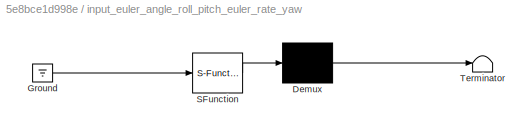
BLOCK [SubSystem] input_euler_angle_roll_pitch_euler_rate_yaw
  ErrorFcn = Stateflow.Translate.translate
  PermitHierarchicalResolution = ExplicitOnly
  Ports = []
  RequestExecContextInheritance = off
  SFBlockType = MATLAB Function
  TreatAsAtomicUnit = on
BLOCK [Demux] input_euler_angle_roll_pitch_euler_rate_yaw/ Demux 
  Outputs = 1
  Ports = [1, 1]
BLOCK [Ground] input_euler_angle_roll_pitch_euler_rate_yaw/ Ground 
BLOCK [S-Function] input_euler_angle_roll_pitch_euler_rate_yaw/ SFunction 
  EnableBusSupport = on
  FunctionName = sf_sfun
  PortCounts = [1 1]
  Ports = [1, 1]
  SFcnIsStateOwnerBlock = off
  SFunctionDeploymentMode = off
  Tag = Stateflow S-Function sim_pos_att2 2
BLOCK [Terminator] input_euler_angle_roll_pitch_euler_rate_yaw/ Terminator 
BLOCK [DataStoreMemory] input_tc
  DataStoreName = input_tc
  InitialValue = input_tc
  OutDataTypeStr = double
  ReadBeforeWriteMsg = warning
  ShowAdditionalParam = off
  SignalType = real
  VectorParams1D = off
  WriteAfterReadMsg = warning
  WriteAfterWriteMsg = warning
BLOCK [DataStoreMemory] is_active_xy
  DataStoreName = is_active_xy
  InitialValue = is_active_xy
  OutDataTypeStr = double
  ReadBeforeWriteMsg = warning
  ShowAdditionalParam = off
  SignalType = real
  VectorParams1D = off
  WriteAfterReadMsg = warning
  WriteAfterWriteMsg = warning
BLOCK [DataStoreMemory] is_active_z
  DataStoreName = is_active_z
  InitialValue = is_active_z
  OutDataTypeStr = double
  ReadBeforeWriteMsg = warning
  ShowAdditionalParam = off
  SignalType = real
  VectorParams1D = off
  WriteAfterReadMsg = warning
  WriteAfterWriteMsg = warning
BLOCK [DataStoreMemory] leash
  DataStoreName = leash
  InitialValue = POSCONTROL_LEASH_LENGTH_MIN
  OutDataTypeStr = double
  ReadBeforeWriteMsg = warning
  ShowAdditionalParam = off
  SignalType = real
  WriteAfterReadMsg = warning
  WriteAfterWriteMsg = warning
BLOCK [DataStoreMemory] leash_down_z
  DataStoreName = leash_down_z
  InitialValue = POSCONTROL_LEASH_LENGTH_MIN
  OutDataTypeStr = double
  ReadBeforeWriteMsg = warning
  ShowAdditionalParam = off
  SignalType = real
  WriteAfterReadMsg = warning
  WriteAfterWriteMsg = warning
BLOCK [DataStoreMemory] leash_up_z
  DataStoreName = leash_up_z
  InitialValue = POSCONTROL_LEASH_LENGTH_MIN
  OutDataTypeStr = double
  ReadBeforeWriteMsg = warning
  ShowAdditionalParam = off
  SignalType = real
  WriteAfterReadMsg = warning
  WriteAfterWriteMsg = warning
BLOCK [DataStoreMemory] limit_accel_xy
  DataStoreName = limit_accel_xy
  InitialValue = limit_accel_xy
  OutDataTypeStr = double
  ReadBeforeWriteMsg = warning
  ShowAdditionalParam = off
  SignalType = real
  VectorParams1D = off
  WriteAfterReadMsg = warning
  WriteAfterWriteMsg = warning
BLOCK [DataStoreMemory] limit_pos_down
  DataStoreName = limit_pos_down
  InitialValue = limit_pos_down
  OutDataTypeStr = double
  ReadBeforeWriteMsg = warning
  ShowAdditionalParam = off
  SignalType = real
  VectorParams1D = off
  WriteAfterReadMsg = warning
  WriteAfterWriteMsg = warning
BLOCK [DataStoreMemory] limit_pos_up
  DataStoreName = limit_pos_up
  InitialValue = limit_pos_up
  OutDataTypeStr = double
  ReadBeforeWriteMsg = warning
  ShowAdditionalParam = off
  SignalType = real
  VectorParams1D = off
  WriteAfterReadMsg = warning
  WriteAfterWriteMsg = warning
BLOCK [DataStoreMemory] limit_roll_pitch
  DataStoreName = limit_roll_pitch
  InitialValue = limit_roll_pitch
  OutDataTypeStr = double
  ReadBeforeWriteMsg = warning
  ShowAdditionalParam = off
  SignalType = real
  VectorParams1D = off
  WriteAfterReadMsg = warning
  WriteAfterWriteMsg = warning
BLOCK [DataStoreMemory] limit_vel_down
  DataStoreName = limit_vel_down
  InitialValue = limit_vel_down
  OutDataTypeStr = double
  ReadBeforeWriteMsg = warning
  ShowAdditionalParam = off
  SignalType = real
  VectorParams1D = off
  WriteAfterReadMsg = warning
  WriteAfterWriteMsg = warning
BLOCK [DataStoreMemory] limit_vel_up
  DataStoreName = limit_vel_up
  InitialValue = limit_vel_up
  OutDataTypeStr = double
  ReadBeforeWriteMsg = warning
  ShowAdditionalParam = off
  SignalType = real
  WriteAfterReadMsg = warning
  WriteAfterWriteMsg = warning
BLOCK [DataStoreMemory] limit_yaw
  DataStoreName = limit_yaw
  InitialValue = limit_yaw
  OutDataTypeStr = double
  ReadBeforeWriteMsg = warning
  ShowAdditionalParam = off
  SignalType = real
  VectorParams1D = off
  WriteAfterReadMsg = warning
  WriteAfterWriteMsg = warning
BLOCK [DataStoreMemory] mode_fy
  DataStoreName = mode_fy
  InitialValue = mode_fy
  OutDataTypeStr = double
  ReadBeforeWriteMsg = warning
  ShowAdditionalParam = off
  SignalType = real
  VectorParams1D = off
  WriteAfterReadMsg = warning
  WriteAfterWriteMsg = warning
BLOCK [DataStoreMemory] motors_limit_roll_pitch
  DataStoreName = motors_limit_roll_pitch
  InitialValue = motors_limit_roll_pitch
  OutDataTypeStr = double
  ReadBeforeWriteMsg = warning
  ShowAdditionalParam = off
  SignalType = real
  VectorParams1D = off
  WriteAfterReadMsg = warning
  WriteAfterWriteMsg = warning
BLOCK [DataStoreMemory] motors_limit_throttle_upper
  DataStoreName = motors_limit_throttle_upper
  InitialValue = motors_limit_throttle_upper
  OutDataTypeStr = double
  ReadBeforeWriteMsg = warning
  ShowAdditionalParam = off
  SignalType = real
  VectorParams1D = off
  WriteAfterReadMsg = warning
  WriteAfterWriteMsg = warning
BLOCK [DataStoreMemory] motors_limit_yaw
  DataStoreName = motors_limit_yaw
  InitialValue = motors_limit_yaw
  OutDataTypeStr = double
  ReadBeforeWriteMsg = warning
  ShowAdditionalParam = off
  SignalType = real
  VectorParams1D = off
  WriteAfterReadMsg = warning
  WriteAfterWriteMsg = warning
BLOCK [DataStoreMemory] p_angle_pitch
  DataStoreName = p_angle_pitch
  InitialValue = p_angle_pitch
  OutDataTypeStr = double
  ReadBeforeWriteMsg = warning
  ShowAdditionalParam = off
  SignalType = real
  VectorParams1D = off
  WriteAfterReadMsg = warning
  WriteAfterWriteMsg = warning
BLOCK [DataStoreMemory] p_angle_roll
  DataStoreName = p_angle_roll
  InitialValue = p_angle_roll
  OutDataTypeStr = double
  ReadBeforeWriteMsg = warning
  ShowAdditionalParam = off
  SignalType = real
  WriteAfterReadMsg = warning
  WriteAfterWriteMsg = warning
BLOCK [DataStoreMemory] p_angle_yaw
  DataStoreName = p_angle_yaw
  InitialValue = p_angle_yaw
  OutDataTypeStr = double
  ReadBeforeWriteMsg = warning
  ShowAdditionalParam = off
  SignalType = real
  WriteAfterReadMsg = warning
  WriteAfterWriteMsg = warning
BLOCK [DataStoreMemory] pid_accel_z_derivative
  DataStoreName = pid_accel_z_derivative
  InitialValue = pid_accel_z_derivative
  OutDataTypeStr = double
  ReadBeforeWriteMsg = warning
  ShowAdditionalParam = off
  SignalType = real
  VectorParams1D = off
  WriteAfterReadMsg = warning
  WriteAfterWriteMsg = warning
BLOCK [DataStoreMemory] pid_accel_z_input
  DataStoreName = pid_accel_z_input
  InitialValue = pid_accel_z_input
  OutDataTypeStr = double
  ReadBeforeWriteMsg = warning
  ShowAdditionalParam = off
  SignalType = real
  VectorParams1D = off
  WriteAfterReadMsg = warning
  WriteAfterWriteMsg = warning
BLOCK [DataStoreMemory] pid_accel_z_integrator
  DataStoreName = pid_accel_z_integrator
  InitialValue = pid_accel_z_integrator
  OutDataTypeStr = double
  ReadBeforeWriteMsg = warning
  ShowAdditionalParam = off
  SignalType = real
  VectorParams1D = off
  WriteAfterReadMsg = warning
  WriteAfterWriteMsg = warning
BLOCK [DataStoreMemory] pid_accel_z_reset_filter
  DataStoreName = pid_accel_z_reset_filter
  InitialValue = pid_accel_z_reset_filter
  OutDataTypeStr = double
  ReadBeforeWriteMsg = warning
  ShowAdditionalParam = off
  SignalType = real
  VectorParams1D = off
  WriteAfterReadMsg = warning
  WriteAfterWriteMsg = warning
BLOCK [DataStoreMemory] pid_vel_xy_derivative
  DataStoreName = pid_vel_xy_derivative
  InitialValue = pid_vel_xy_derivative
  OutDataTypeStr = double
  ReadBeforeWriteMsg = warning
  ShowAdditionalParam = off
  SignalType = real
  VectorParams1D = off
  WriteAfterReadMsg = warning
  WriteAfterWriteMsg = warning
BLOCK [DataStoreMemory] pid_vel_xy_input
  DataStoreName = pid_vel_xy_input
  InitialValue = pid_vel_xy_input
  OutDataTypeStr = double
  ReadBeforeWriteMsg = warning
  ShowAdditionalParam = off
  SignalType = real
  VectorParams1D = off
  WriteAfterReadMsg = warning
  WriteAfterWriteMsg = warning
BLOCK [DataStoreMemory] pid_vel_xy_integrator
  DataStoreName = pid_vel_xy_integrator
  InitialValue = pid_vel_xy_integrator
  OutDataTypeStr = double
  ReadBeforeWriteMsg = warning
  ShowAdditionalParam = off
  SignalType = real
  VectorParams1D = off
  WriteAfterReadMsg = warning
  WriteAfterWriteMsg = warning
BLOCK [DataStoreMemory] pid_vel_xy_reset_filter
  DataStoreName = pid_vel_xy_reset_filter
  InitialValue = pid_vel_xy_reset_filter
  OutDataTypeStr = double
  ReadBeforeWriteMsg = warning
  ShowAdditionalParam = off
  SignalType = real
  VectorParams1D = off
  WriteAfterReadMsg = warning
  WriteAfterWriteMsg = warning
BLOCK [DataStoreMemory] pitch
  DataStoreName = pitch
  InitialValue = pitch
  OutDataTypeStr = double
  ReadBeforeWriteMsg = warning
  ShowAdditionalParam = off
  SignalType = real
  VectorParams1D = off
  WriteAfterReadMsg = warning
  WriteAfterWriteMsg = warning
BLOCK [DataStoreMemory] pitch_factor
  DataStoreName = pitch_factor
  InitialValue = pitch_factor
  OutDataTypeStr = double
  ReadBeforeWriteMsg = warning
  ShowAdditionalParam = off
  SignalType = real
  VectorParams1D = off
  WriteAfterReadMsg = warning
  WriteAfterWriteMsg = warning
BLOCK [DataStoreMemory] pitch_in
  DataStoreName = pitch_in
  InitialValue = pitch_in
  OutDataTypeStr = double
  ReadBeforeWriteMsg = warning
  ShowAdditionalParam = off
  SignalType = real
  VectorParams1D = off
  WriteAfterReadMsg = warning
  WriteAfterWriteMsg = warning
BLOCK [DataStoreMemory] pitch_target
  DataStoreName = pitch_target
  InitialValue = pitch_target
  OutDataTypeStr = double
  ReadBeforeWriteMsg = warning
  ShowAdditionalParam = off
  SignalType = real
  VectorParams1D = off
  WriteAfterReadMsg = warning
  WriteAfterWriteMsg = warning
BLOCK [DataStoreMemory] pos_error
  DataStoreName = pos_error
  InitialValue = pos_error
  OutDataTypeStr = double
  ReadBeforeWriteMsg = warning
  ShowAdditionalParam = off
  SignalType = real
  VectorParams1D = off
  WriteAfterReadMsg = warning
  WriteAfterWriteMsg = warning
BLOCK [DataStoreMemory] pos_target
  DataStoreName = pos_target
  InitialValue = pos_target
  OutDataTypeStr = double
  ReadBeforeWriteMsg = warning
  ShowAdditionalParam = off
  SignalType = real
  VectorParams1D = off
  WriteAfterReadMsg = warning
  WriteAfterWriteMsg = warning
BLOCK [DataStoreMemory] pwm_max
  DataStoreName = pwm_max
  InitialValue = pwm_max
  OutDataTypeStr = double
  ReadBeforeWriteMsg = warning
  ShowAdditionalParam = off
  SignalType = real
  VectorParams1D = off
  WriteAfterReadMsg = warning
  WriteAfterWriteMsg = warning
BLOCK [DataStoreMemory] pwm_min
  DataStoreName = pwm_min
  InitialValue = pwm_min
  OutDataTypeStr = double
  ReadBeforeWriteMsg = warning
  ShowAdditionalParam = off
  SignalType = real
  VectorParams1D = off
  WriteAfterReadMsg = warning
  WriteAfterWriteMsg = warning
BLOCK [DataStoreMemory] pwm_out
  DataStoreName = pwm_out
  InitialValue = pwm_out
  OutDataTypeStr = double
  ReadBeforeWriteMsg = warning
  ShowAdditionalParam = off
  SignalType = real
  VectorParams1D = off
  WriteAfterReadMsg = warning
  WriteAfterWriteMsg = warning
BLOCK [DataStoreMemory] rate_bf_ff_enabled
  DataStoreName = rate_bf_ff_enabled
  InitialValue = rate_bf_ff_enabled
  OutDataTypeStr = double
  ReadBeforeWriteMsg = warning
  ShowAdditionalParam = off
  SignalType = real
  WriteAfterReadMsg = warning
  WriteAfterWriteMsg = warning
BLOCK [DataStoreMemory] rate_pitch_pid_derivative
  DataStoreName = rate_pitch_pid_derivative
  InitialValue = rate_pitch_pid_derivative
  OutDataTypeStr = double
  ReadBeforeWriteMsg = warning
  ShowAdditionalParam = off
  SignalType = real
  VectorParams1D = off
  WriteAfterReadMsg = warning
  WriteAfterWriteMsg = warning
BLOCK [DataStoreMemory] rate_pitch_pid_input
  DataStoreName = rate_pitch_pid_input
  InitialValue = rate_pitch_pid_input
  OutDataTypeStr = double
  ReadBeforeWriteMsg = warning
  ShowAdditionalParam = off
  SignalType = real
  VectorParams1D = off
  WriteAfterReadMsg = warning
  WriteAfterWriteMsg = warning
BLOCK [DataStoreMemory] rate_pitch_pid_integrator
  DataStoreName = rate_pitch_pid_integrator
  InitialValue = rate_pitch_pid_integrator
  OutDataTypeStr = double
  ReadBeforeWriteMsg = warning
  ShowAdditionalParam = off
  SignalType = real
  VectorParams1D = off
  WriteAfterReadMsg = warning
  WriteAfterWriteMsg = warning
BLOCK [DataStoreMemory] rate_pitch_pid_reset_filter
  DataStoreName = rate_pitch_pid_reset_filter
  InitialValue = rate_pitch_pid_reset_filter
  OutDataTypeStr = double
  ReadBeforeWriteMsg = warning
  ShowAdditionalParam = off
  SignalType = real
  VectorParams1D = off
  WriteAfterReadMsg = warning
  WriteAfterWriteMsg = warning
BLOCK [DataStoreMemory] rate_roll_pid_derivative
  DataStoreName = rate_roll_pid_derivative
  InitialValue = rate_roll_pid_derivative
  OutDataTypeStr = double
  ReadBeforeWriteMsg = warning
  ShowAdditionalParam = off
  SignalType = real
  VectorParams1D = off
  WriteAfterReadMsg = warning
  WriteAfterWriteMsg = warning
BLOCK [DataStoreMemory] rate_roll_pid_input
  DataStoreName = rate_roll_pid_input
  InitialValue = rate_roll_pid_input
  OutDataTypeStr = double
  ReadBeforeWriteMsg = warning
  ShowAdditionalParam = off
  SignalType = real
  VectorParams1D = off
  WriteAfterReadMsg = warning
  WriteAfterWriteMsg = warning
BLOCK [DataStoreMemory] rate_roll_pid_integrator
  DataStoreName = rate_roll_pid_integrator
  InitialValue = rate_roll_pid_integrator
  OutDataTypeStr = double
  ReadBeforeWriteMsg = warning
  ShowAdditionalParam = off
  SignalType = real
  VectorParams1D = off
  WriteAfterReadMsg = warning
  WriteAfterWriteMsg = warning
BLOCK [DataStoreMemory] rate_roll_pid_reset_filter
  DataStoreName = rate_roll_pid_reset_filter
  InitialValue = rate_roll_pid_reset_filter
  OutDataTypeStr = double
  ReadBeforeWriteMsg = warning
  ShowAdditionalParam = off
  SignalType = real
  VectorParams1D = off
  WriteAfterReadMsg = warning
  WriteAfterWriteMsg = warning
BLOCK [DataStoreMemory] rate_target_ang_vel
  DataStoreName = rate_target_ang_vel
  InitialValue = rate_target_ang_vel
  OutDataTypeStr = double
  ReadBeforeWriteMsg = warning
  ShowAdditionalParam = off
  SignalType = real
  VectorParams1D = off
  WriteAfterReadMsg = warning
  WriteAfterWriteMsg = warning
BLOCK [DataStoreMemory] rate_yaw_pid_derivative
  DataStoreName = rate_yaw_pid_derivative
  InitialValue = rate_yaw_pid_derivative
  OutDataTypeStr = double
  ReadBeforeWriteMsg = warning
  ShowAdditionalParam = off
  SignalType = real
  VectorParams1D = off
  WriteAfterReadMsg = warning
  WriteAfterWriteMsg = warning
BLOCK [DataStoreMemory] rate_yaw_pid_input
  DataStoreName = rate_yaw_pid_input
  InitialValue = rate_yaw_pid_input
  OutDataTypeStr = double
  ReadBeforeWriteMsg = warning
  ShowAdditionalParam = off
  SignalType = real
  VectorParams1D = off
  WriteAfterReadMsg = warning
  WriteAfterWriteMsg = warning
BLOCK [DataStoreMemory] rate_yaw_pid_integrator
  DataStoreName = rate_yaw_pid_integrator
  InitialValue = rate_roll_pid_integrator
  OutDataTypeStr = double
  ReadBeforeWriteMsg = warning
  ShowAdditionalParam = off
  SignalType = real
  VectorParams1D = off
  WriteAfterReadMsg = warning
  WriteAfterWriteMsg = warning
BLOCK [DataStoreMemory] rate_yaw_pid_reset_filter
  DataStoreName = rate_yaw_pid_reset_filter
  InitialValue = rate_yaw_pid_reset_filter
  OutDataTypeStr = double
  ReadBeforeWriteMsg = warning
  ShowAdditionalParam = off
  SignalType = real
  VectorParams1D = off
  WriteAfterReadMsg = warning
  WriteAfterWriteMsg = warning
BLOCK [DataStoreMemory] recalc_leash_xy
  DataStoreName = recalc_leash_xy
  InitialValue = recalc_leash_xy
  OutDataTypeStr = double
  ReadBeforeWriteMsg = warning
  ShowAdditionalParam = off
  SignalType = real
  VectorParams1D = off
  WriteAfterReadMsg = warning
  WriteAfterWriteMsg = warning
BLOCK [DataStoreMemory] recalc_leash_z
  DataStoreName = recalc_leash_z
  InitialValue = recalc_leash_z
  OutDataTypeStr = double
  ReadBeforeWriteMsg = warning
  ShowAdditionalParam = off
  SignalType = real
  WriteAfterReadMsg = warning
  WriteAfterWriteMsg = warning
BLOCK [DataStoreMemory] reset_accel_to_lean_xy
  DataStoreName = reset_accel_to_lean_xy
  InitialValue = reset_accel_to_lean_xy
  OutDataTypeStr = double
  ReadBeforeWriteMsg = warning
  ShowAdditionalParam = off
  SignalType = real
  VectorParams1D = off
  WriteAfterReadMsg = warning
  WriteAfterWriteMsg = warning
BLOCK [DataStoreMemory] reset_accel_to_throttle
  DataStoreName = reset_accel_to_throttle
  InitialValue = reset_accel_to_throttle
  OutDataTypeStr = double
  ReadBeforeWriteMsg = warning
  ShowAdditionalParam = off
  SignalType = real
  VectorParams1D = off
  WriteAfterReadMsg = warning
  WriteAfterWriteMsg = warning
BLOCK [DataStoreMemory] reset_desired_vel_to_pos
  DataStoreName = reset_desired_vel_to_pos
  InitialValue = reset_desired_vel_to_pos
  OutDataTypeStr = double
  ReadBeforeWriteMsg = warning
  ShowAdditionalParam = off
  SignalType = real
  VectorParams1D = off
  WriteAfterReadMsg = warning
  WriteAfterWriteMsg = warning
BLOCK [DataStoreMemory] reset_rate_to_accel_z
  DataStoreName = reset_rate_to_accel_z
  InitialValue = reset_rate_to_accel_z
  OutDataTypeStr = double
  ReadBeforeWriteMsg = warning
  ShowAdditionalParam = off
  SignalType = real
  VectorParams1D = off
  WriteAfterReadMsg = warning
  WriteAfterWriteMsg = warning
BLOCK [DataStoreMemory] roll
  DataStoreName = roll
  InitialValue = roll
  OutDataTypeStr = double
  ReadBeforeWriteMsg = warning
  ShowAdditionalParam = off
  SignalType = real
  VectorParams1D = off
  WriteAfterReadMsg = warning
  WriteAfterWriteMsg = warning
BLOCK [DataStoreMemory] roll_factor
  DataStoreName = roll_factor
  InitialValue = roll_factor
  OutDataTypeStr = double
  ReadBeforeWriteMsg = warning
  ShowAdditionalParam = off
  SignalType = real
  VectorParams1D = off
  WriteAfterReadMsg = warning
  WriteAfterWriteMsg = warning
BLOCK [DataStoreMemory] roll_in
  DataStoreName = roll_in
  InitialValue = roll_in
  OutDataTypeStr = double
  ReadBeforeWriteMsg = warning
  ShowAdditionalParam = off
  SignalType = real
  VectorParams1D = off
  WriteAfterReadMsg = warning
  WriteAfterWriteMsg = warning
BLOCK [DataStoreMemory] roll_target
  DataStoreName = roll_target
  InitialValue = roll_target
  OutDataTypeStr = double
  ReadBeforeWriteMsg = warning
  ShowAdditionalParam = off
  SignalType = real
  VectorParams1D = off
  WriteAfterReadMsg = warning
  WriteAfterWriteMsg = warning
BLOCK [DataStoreMemory] rot_body_to_ned
  DataStoreName = rot_body_to_ned
  InitialValue = rot_body_to_ned
  OutDataTypeStr = double
  ReadBeforeWriteMsg = warning
  ShowAdditionalParam = off
  SignalType = real
  VectorParams1D = off
  WriteAfterReadMsg = warning
  WriteAfterWriteMsg = warning
BLOCK [DataStoreMemory] slew_yaw
  DataStoreName = slew_yaw
  InitialValue = slew_yaw
  OutDataTypeStr = double
  ReadBeforeWriteMsg = warning
  ShowAdditionalParam = off
  SignalType = real
  VectorParams1D = off
  WriteAfterReadMsg = warning
  WriteAfterWriteMsg = warning
BLOCK [DataStoreMemory] target_yaw_rate
  DataStoreName = target_yaw_rate
  InitialValue = target_yaw_rate
  OutDataTypeStr = double
  ReadBeforeWriteMsg = warning
  ShowAdditionalParam = off
  SignalType = real
  VectorParams1D = off
  WriteAfterReadMsg = warning
  WriteAfterWriteMsg = warning
BLOCK [DataStoreMemory] throttle_avg_max
  DataStoreName = throttle_avg_max
  InitialValue = throttle_avg_max
  OutDataTypeStr = double
  ReadBeforeWriteMsg = warning
  ShowAdditionalParam = off
  SignalType = real
  VectorParams1D = off
  WriteAfterReadMsg = warning
  WriteAfterWriteMsg = warning
BLOCK [DataStoreMemory] throttle_cutoff_frequency
  DataStoreName = throttle_cutoff_frequency
  InitialValue = throttle_cutoff_frequency
  OutDataTypeStr = double
  ReadBeforeWriteMsg = warning
  ShowAdditionalParam = off
  SignalType = real
  VectorParams1D = off
  WriteAfterReadMsg = warning
  WriteAfterWriteMsg = warning
BLOCK [DataStoreMemory] throttle_filter
  DataStoreName = throttle_filter
  InitialValue = throttle_filter
  OutDataTypeStr = double
  ReadBeforeWriteMsg = warning
  ShowAdditionalParam = off
  SignalType = real
  VectorParams1D = off
  WriteAfterReadMsg = warning
  WriteAfterWriteMsg = warning
BLOCK [DataStoreMemory] throttle_hover
  DataStoreName = throttle_hover
  InitialValue = throttle_hover
  OutDataTypeStr = double
  ReadBeforeWriteMsg = warning
  ShowAdditionalParam = off
  SignalType = real
  VectorParams1D = off
  WriteAfterReadMsg = warning
  WriteAfterWriteMsg = warning
BLOCK [DataStoreMemory] throttle_in
  DataStoreName = throttle_in
  InitialValue = throttle_in
  OutDataTypeStr = double
  ReadBeforeWriteMsg = warning
  ShowAdditionalParam = off
  SignalType = real
  VectorParams1D = off
  WriteAfterReadMsg = warning
  WriteAfterWriteMsg = warning
BLOCK [DataStoreMemory] throttle_input
  DataStoreName = throttle_input
  InitialValue = throttle_input
  OutDataTypeStr = double
  ReadBeforeWriteMsg = warning
  ShowAdditionalParam = off
  SignalType = real
  VectorParams1D = off
  WriteAfterReadMsg = warning
  WriteAfterWriteMsg = warning
BLOCK [DataStoreMemory] throttle_lower
  DataStoreName = throttle_lower
  InitialValue = throttle_lower
  OutDataTypeStr = double
  ReadBeforeWriteMsg = warning
  ShowAdditionalParam = off
  SignalType = real
  VectorParams1D = off
  WriteAfterReadMsg = warning
  WriteAfterWriteMsg = warning
BLOCK [DataStoreMemory] throttle_rpy_mix
  DataStoreName = throttle_rpy_mix
  InitialValue = throttle_rpy_mix
  OutDataTypeStr = double
  ReadBeforeWriteMsg = warning
  ShowAdditionalParam = off
  SignalType = real
  VectorParams1D = off
  WriteAfterReadMsg = warning
  WriteAfterWriteMsg = warning
BLOCK [DataStoreMemory] throttle_rpy_mix_desired
  DataStoreName = throttle_rpy_mix_desired
  InitialValue = throttle_rpy_mix_desired
  OutDataTypeStr = double
  ReadBeforeWriteMsg = warning
  ShowAdditionalParam = off
  SignalType = real
  VectorParams1D = off
  WriteAfterReadMsg = warning
  WriteAfterWriteMsg = warning
BLOCK [DataStoreMemory] throttle_thrust_max
  DataStoreName = throttle_thrust_max
  InitialValue = throttle_thrust_max
  OutDataTypeStr = double
  ReadBeforeWriteMsg = warning
  ShowAdditionalParam = off
  SignalType = real
  VectorParams1D = off
  WriteAfterReadMsg = warning
  WriteAfterWriteMsg = warning
BLOCK [DataStoreMemory] throttle_upper
  DataStoreName = throttle_upper
  InitialValue = throttle_upper
  OutDataTypeStr = double
  ReadBeforeWriteMsg = warning
  ShowAdditionalParam = off
  SignalType = real
  VectorParams1D = off
  WriteAfterReadMsg = warning
  WriteAfterWriteMsg = warning
BLOCK [DataStoreMemory] thrust_boost
  DataStoreName = thrust_boost
  InitialValue = thrust_boost
  OutDataTypeStr = double
  ReadBeforeWriteMsg = warning
  ShowAdditionalParam = off
  SignalType = real
  VectorParams1D = off
  WriteAfterReadMsg = warning
  WriteAfterWriteMsg = warning
BLOCK [DataStoreMemory] thrust_boost_ratio
  DataStoreName = thrust_boost_ratio
  InitialValue = thrust_boost_ratio
  OutDataTypeStr = double
  ReadBeforeWriteMsg = warning
  ShowAdditionalParam = off
  SignalType = real
  VectorParams1D = off
  WriteAfterReadMsg = warning
  WriteAfterWriteMsg = warning
BLOCK [DataStoreMemory] thrust_error_angle
  DataStoreName = thrust_error_angle
  InitialValue = thrust_error_angle
  OutDataTypeStr = double
  ReadBeforeWriteMsg = warning
  ShowAdditionalParam = off
  SignalType = real
  VectorParams1D = off
  WriteAfterReadMsg = warning
  WriteAfterWriteMsg = warning
BLOCK [DataStoreMemory] thrust_rpyt_out
  DataStoreName = thrust_rpyt_out
  InitialValue = thrust_rpyt_out
  OutDataTypeStr = double
  ReadBeforeWriteMsg = warning
  ShowAdditionalParam = off
  SignalType = real
  VectorParams1D = off
  WriteAfterReadMsg = warning
  WriteAfterWriteMsg = warning
BLOCK [DataStoreMemory] thrust_slew_time
  DataStoreName = thrust_slew_time
  InitialValue = thrust_slew_time
  OutDataTypeStr = double
  ReadBeforeWriteMsg = warning
  ShowAdditionalParam = off
  SignalType = real
  VectorParams1D = off
  WriteAfterReadMsg = warning
  WriteAfterWriteMsg = warning
BLOCK [DataStoreMemory] use_desvel_ff_z
  DataStoreName = use_desvel_ff_z
  InitialValue = use_desvel_ff_z
  OutDataTypeStr = double
  ReadBeforeWriteMsg = warning
  ShowAdditionalParam = off
  SignalType = real
  VectorParams1D = off
  WriteAfterReadMsg = warning
  WriteAfterWriteMsg = warning
BLOCK [DataStoreMemory] use_sqrt_controller
  DataStoreName = use_sqrt_controller
  InitialValue = use_sqrt_controller
  OutDataTypeStr = double
  ReadBeforeWriteMsg = warning
  ShowAdditionalParam = off
  SignalType = real
  WriteAfterReadMsg = warning
  WriteAfterWriteMsg = warning
BLOCK [DataStoreMemory] vel_desired
  DataStoreName = vel_desired
  InitialValue = vel_desired
  OutDataTypeStr = double
  ReadBeforeWriteMsg = warning
  ShowAdditionalParam = off
  SignalType = real
  VectorParams1D = off
  WriteAfterReadMsg = warning
  WriteAfterWriteMsg = warning
BLOCK [DataStoreMemory] vel_error
  DataStoreName = vel_error
  InitialValue = vel_error
  OutDataTypeStr = double
  ReadBeforeWriteMsg = warning
  ShowAdditionalParam = off
  SignalType = real
  VectorParams1D = off
  WriteAfterReadMsg = warning
  WriteAfterWriteMsg = warning
BLOCK [DataStoreMemory] vel_error_input
  DataStoreName = vel_error_input
  InitialValue = vel_error_input
  OutDataTypeStr = double
  ReadBeforeWriteMsg = warning
  ShowAdditionalParam = off
  SignalType = real
  VectorParams1D = off
  WriteAfterReadMsg = warning
  WriteAfterWriteMsg = warning
BLOCK [DataStoreMemory] vel_last
  DataStoreName = vel_last
  InitialValue = vel_last
  OutDataTypeStr = double
  ReadBeforeWriteMsg = warning
  ShowAdditionalParam = off
  SignalType = real
  VectorParams1D = off
  WriteAfterReadMsg = warning
  WriteAfterWriteMsg = warning
BLOCK [DataStoreMemory] vel_target
  DataStoreName = vel_target
  InitialValue = vel_target
  OutDataTypeStr = double
  ReadBeforeWriteMsg = warning
  ShowAdditionalParam = off
  SignalType = real
  VectorParams1D = off
  WriteAfterReadMsg = warning
  WriteAfterWriteMsg = warning
BLOCK [DataStoreMemory] yaw
  DataStoreName = yaw
  InitialValue = yaw
  OutDataTypeStr = double
  ReadBeforeWriteMsg = warning
  ShowAdditionalParam = off
  SignalType = real
  VectorParams1D = off
  WriteAfterReadMsg = warning
  WriteAfterWriteMsg = warning
BLOCK [DataStoreMemory] yaw_factor
  DataStoreName = yaw_factor
  InitialValue = yaw_factor
  OutDataTypeStr = double
  ReadBeforeWriteMsg = warning
  ShowAdditionalParam = off
  SignalType = real
  VectorParams1D = off
  WriteAfterReadMsg = warning
  WriteAfterWriteMsg = warning
BLOCK [DataStoreMemory] yaw_headroom
  DataStoreName = yaw_headroom
  InitialValue = yaw_headroom
  OutDataTypeStr = double
  ReadBeforeWriteMsg = warning
  ShowAdditionalParam = off
  SignalType = real
  VectorParams1D = off
  WriteAfterReadMsg = warning
  WriteAfterWriteMsg = warning
BLOCK [DataStoreMemory] yaw_in
  DataStoreName = yaw_in
  InitialValue = yaw_in
  OutDataTypeStr = double
  ReadBeforeWriteMsg = warning
  ShowAdditionalParam = off
  SignalType = real
  VectorParams1D = off
  WriteAfterReadMsg = warning
  WriteAfterWriteMsg = warning
BLOCK [DataStoreMemory] z_accel_meas
  DataStoreName = z_accel_meas
  InitialValue = z_accel_meas
  OutDataTypeStr = double
  ReadBeforeWriteMsg = warning
  ShowAdditionalParam = off
  SignalType = real
  VectorParams1D = off
  WriteAfterReadMsg = warning
  WriteAfterWriteMsg = warning
NET 6DOF (Euler Angles):1 -> Display:1, Gain5:1, Scope39:1
NET 6DOF (Euler Angles):2 -> Demux11:1, Gain7:1
LINE 6DOF (Euler Angles):3 -> Demux:1
NET 6DOF (Euler Angles):4 -> Inertial to Body:1, Transpose:1
NET 6DOF (Euler Angles):5 -> Display3:1, Scope59:1
NET 6DOF (Euler Angles):6 -> Demux1:1, Display17:1, Scope10:1
LINE 6DOF (Euler Angles):8 -> Inertial to Body1:2
NET Add1:1 -> Product1:1, Scope26:3, Scope28:1
LINE Add2:1 -> Scope52:1
NET Add:1 -> Product:1, Scope18:3, Scope20:1
LINE Constant1:1 -> Product1:2
LINE Constant2:1 -> Divide:1
LINE Constant:1 -> Product:2
LINE Cos:1 -> Divide:2
NET Data Store Read10:1 -> Gain2:1, Scope2:1
NET Data Store Read11:1 -> Display16:1, Scope25:1
NET Data Store Read12:1 -> Demux2:1, Gain3:1
LINE Data Store Read13:1 -> Scope4:1
LINE Data Store Read14:1 -> Scope5:1
LINE Data Store Read15:1 -> Scope6:1
NET Data Store Read16:1 -> Scope60:3, Scope8:1
LINE Data Store Read17:1 -> Scope7:1
LINE Data Store Read18:1 -> Scope15:1
NET Data Store Read19:1 -> Scope60:2, Scope9:1
LINE Data Store Read1:1 -> Gain:1
LINE Data Store Read20:1 -> Scope17:1
LINE Data Store Read21:1 -> Scope16:1
LINE Data Store Read22:1 -> MATLAB Function1:1
LINE Data Store Read23:1 -> Demux4:1
NET Data Store Read24:1 -> Add:2, Scope57:2
LINE Data Store Read25:1 -> Demux5:1
NET Data Store Read26:1 -> Demux6:1, Scope21:1
LINE Data Store Read27:1 -> MATLAB Function2:1
LINE Data Store Read28:1 -> Demux8:1
LINE Data Store Read29:1 -> Add1:2
NET Data Store Read2:1 -> Display2:1, Scope23:1
LINE Data Store Read30:1 -> Demux9:1
NET Data Store Read31:1 -> Demux10:1, Scope29:1
LINE Data Store Read32:1 -> Scope31:1
LINE Data Store Read33:1 -> Scope32:1
LINE Data Store Read34:1 -> Demux12:1
NET Data Store Read35:1 -> Scope34:1, Scope38:2
LINE Data Store Read36:1 -> Demux13:1
NET Data Store Read37:1 -> Scope36:1, Scope53:2
NET Data Store Read38:1 -> Scope37:1, Scope53:3
NET Data Store Read39:1 -> Scope40:1, Scope53:1
NET Data Store Read3:1 -> Display11:1, Scope24:1
LINE Data Store Read40:1 -> Scope41:1
NET Data Store Read41:1 -> Scope42:1, Scope53:4
LINE Data Store Read42:1 -> Demux16:1
NET Data Store Read43:1 -> Add2:2, Scope44:1, Scope51:2
LINE Data Store Read44:1 -> Demux15:1
LINE Data Store Read45:1 -> Demux14:1
LINE Data Store Read46:1 -> Scope54:1
LINE Data Store Read48:1 -> Cos:1
LINE Data Store Read4:1 -> Display12:1
LINE Data Store Read5:1 -> Display5:1
LINE Data Store Read6:1 -> Display13:1
LINE Data Store Read7:1 -> Gain1:1
NET Data Store Read8:1 -> Display4:1, Scope22:1
LINE Data Store Read9:1 -> Scope1:1
NET Data Store Read:1 -> Display7:1, MATLAB Function:1, Scope3:1
LINE Demux10:3 -> Scope28:3
LINE Demux11:3 -> Gain4:1
LINE Demux12:1 -> Scope33:1
LINE Demux12:2 -> Scope33:2
NET Demux12:3 -> Scope33:3, Scope38:1
NET Demux13:3 -> Scope35:1, Scope38:3
NET Demux14:3 -> Scope46:1, Scope51:3, Scope52:2
LINE Demux15:3 -> Scope45:1
NET Demux16:3 -> Add2:1, Scope43:1, Scope51:1
LINE Demux17:1 -> Scope49:1
LINE Demux17:2 -> Scope50:1
NET Demux17:3 -> Data Store Write8:1, Scope48:1
LINE Demux18:1 -> Scope56:1
LINE Demux18:2 -> Scope56:2
LINE Demux18:3 -> Scope56:3
NET Demux1:1 -> Data Store Write4:1, Scope13:1
NET Demux1:2 -> Data Store Write5:1, Scope12:1
NET Demux1:3 -> Data Store Write6:1, Scope11:1
LINE Demux2:1 -> Scope22:2
LINE Demux2:2 -> Scope2:2
LINE Demux2:3 -> Scope25:2
LINE Demux3:2 -> Scope18:1
NET Demux4:2 -> Scope18:2, Scope19:1
NET Demux5:2 -> Add:1, Scope57:1
LINE Demux6:2 -> Scope20:3
LINE Demux7:3 -> Scope26:1
NET Demux8:3 -> Scope26:2, Scope27:1
LINE Demux9:3 -> Add1:1
LINE Demux:1 -> Data Store Write1:1
LINE Demux:2 -> Data Store Write3:1
LINE Demux:3 -> Data Store Write2:1
LINE Divide:1 -> Scope60:1
LINE Gain1:1 -> Display14:1
LINE Gain2:1 -> Display15:1
LINE Gain3:1 -> Display18:1
NET Gain4:1 -> Data Store Write7:1, Scope30:1
LINE Gain5:1 -> Data Store Write9:1
LINE Gain6:1 -> Demux17:1
NET Gain7:1 -> Data Store Write10:1, Demux18:1, Display1:1, Scope55:1
NET Gain:1 -> Display10:1, Scope:1
NET Gravity in Earth Axes:1 -> Inertial to Body:2, Scope61:1
NET Inertial to Body1:1 -> Display6:1, Gain6:1, Scope47:1
LINE Inertial to Body2:1 -> Scope63:1
NET Inertial to Body:1 -> MATLAB Function:2, Scope62:1
LINE MATLAB Function1:1 -> Demux3:1
LINE MATLAB Function2:1 -> Demux7:1
NET MATLAB Function:1 -> 6DOF (Euler Angles):1, Display8:1, Inertial to Body2:2, Scope58:1
NET MATLAB Function:2 -> 6DOF (Euler Angles):2, Scope14:1
LINE Product1:1 -> Scope28:2
LINE Product:1 -> Scope20:2
NET Transpose:1 -> Inertial to Body1:1, Inertial to Body2:1
LINE gn:1 -> Gravity in Earth Axes:1
note: NET lines group one-source signal fan-out (src -> all destinations, sorted); 1:1 wires keep LINE
CHART MATLAB Function states=1 transitions=1
  STATE_LABEL 'eML_blk_kernel()'
  STATE_LABEL 'SCRIPT:\nfunction [F ,M] = mode_F_M(pwm_out, gn, Ku, Kd, Lux, Luy, Ldx, Ldy, Lu, Ld, pwm_min, pwm_max, Qu, Qd)\n% global pwm_min\n% global pwm_max\n% global Ku\n% global Kd\n% global Lux\n% global Luy\n% global Ldx\n% global Ldy\n% global Lu\n% global Ld\nF1=(pwm_out(1)-pwm_min)/(pwm_max-pwm_min)*Ku;\nF2=(pwm_out(2)-pwm_min)/(pwm_max-pwm_min)*Kd;\nF3=(pwm_out(3)-pwm_min)/(pwm_max-pwm_min)*Ku;\nF4=(pwm_out(4)-pwm...<+230ch>'
CHART input_euler_angle_roll_pitch_euler_rate_yaw states=1 transitions=1
  STATE_LABEL 'eML_blk_kernel()'
  STATE_LABEL 'SCRIPT:\nfunction input_euler_angle_roll_pitch_euler_rate_yaw\n\n\nglobal roll_target\nglobal pitch_target\nglobal target_yaw_rate\n\nglobal inint\n    if(inint)\n    setup_motors() ;\n    inint=0;\n    end\nupdata_cl();\n% update_vel_controller_xyz()\n% input_euler_angle_roll_pitch_euler_rate_yaw(  roll_target,   pitch_target,   0)\ninput_euler_angle_roll_pitch_euler_rate_yaw(  roll_target,   pitch_target,   tar...<+226ch>'
CHART MATLAB Function1 states=1 transitions=1
  STATE_LABEL 'eML_blk_kernel()'
  STATE_LABEL 'SCRIPT:\nfunction euler_angle= to_euler(q)\n\neuler_angle= to_euler(q);\n'
CHART MATLAB Function2 states=1 transitions=1
  STATE_LABEL 'eML_blk_kernel()'
  STATE_LABEL 'SCRIPT:\nfunction euler_angle= to_euler(q)\n\neuler_angle= to_euler(q);\n'
